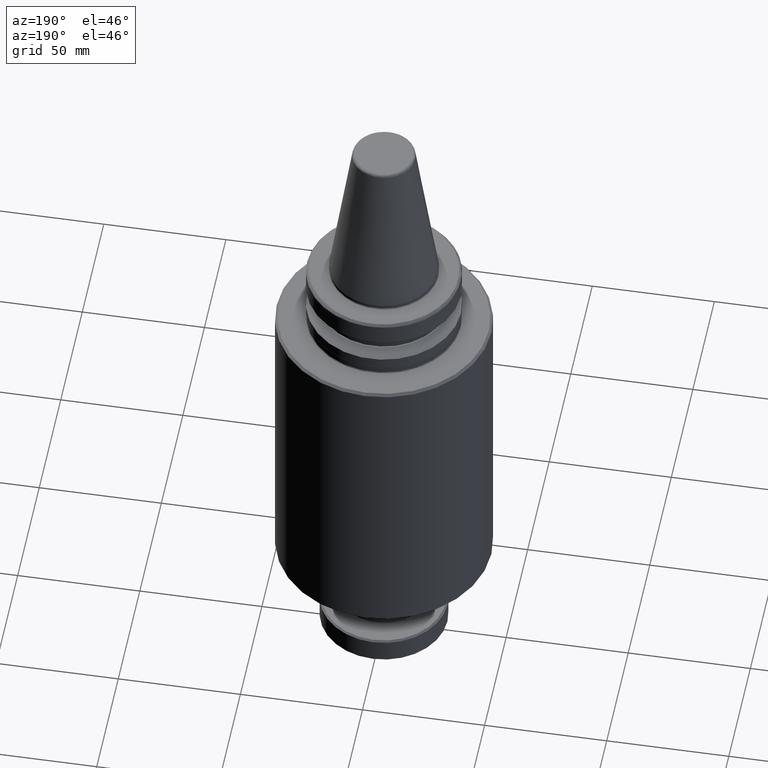
[diagram: clean part render]
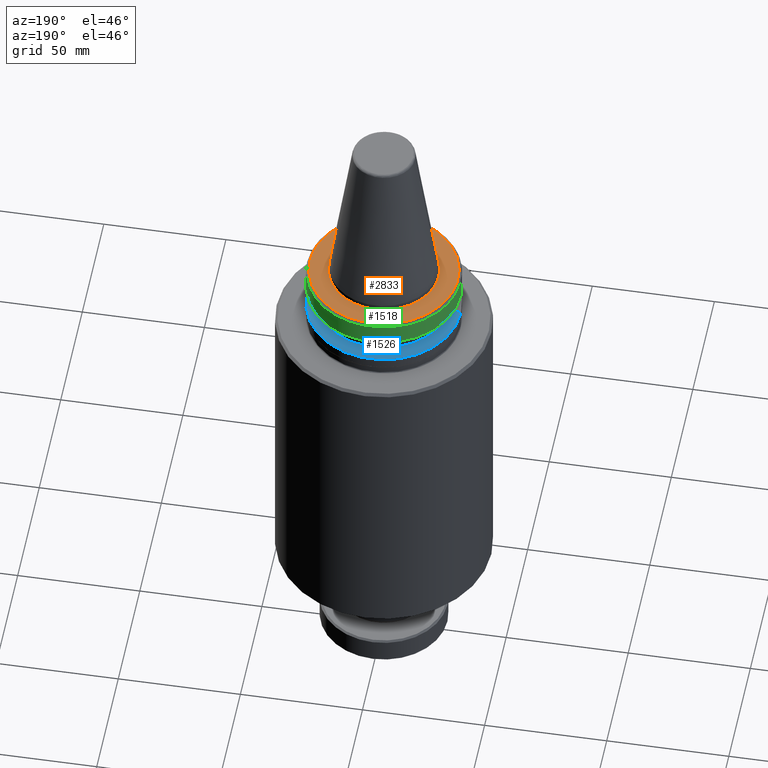
[diagram: same view with three faces highlighted in distinct colors, each labeled with its STEP entity id]
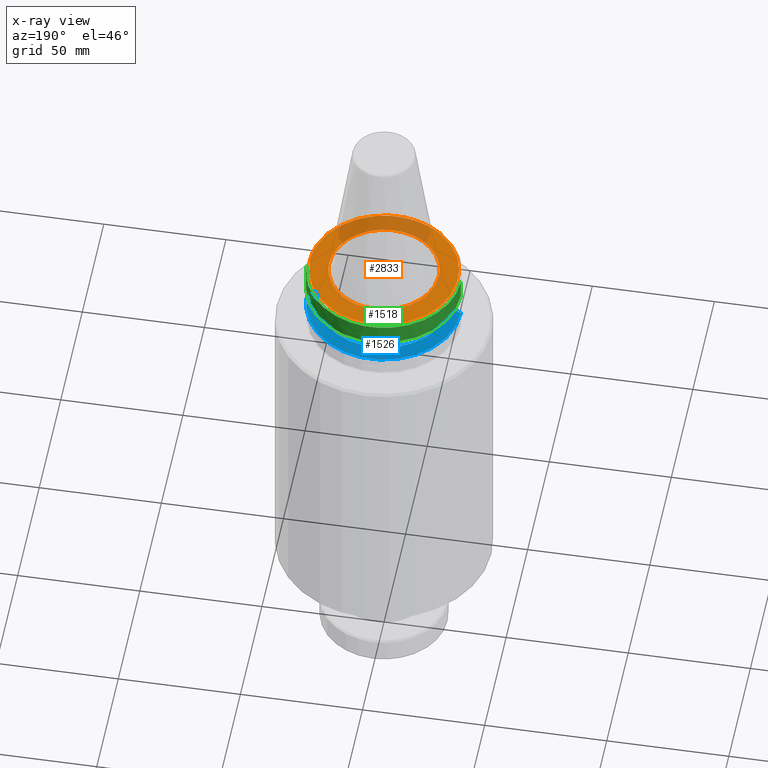
[diagram: x-ray of the same camera — body ghosted, the three highlighted faces saturated]
A machine part, auxiliary view with three faces highlighted in distinct colors.
The next image is the same camera in x-ray (body ghosted, the three faces saturated) — at least one of them is partly hidden behind the body in this view.
Their STEP definitions:

[orange] entity #2833 — the highlighted planar face has unit normal (0, 0, 1).
#10 = CARTESIAN_POINT ( 'NONE',  ( -21.19363721147259500, -21.70279524882472800, -2.000000000000003600 ) ) ;
#11 = CARTESIAN_POINT ( 'NONE',  ( -21.34265533147402400, -21.55628054257266200, -2.000000000000003100 ) ) ;
#13 = CARTESIAN_POINT ( 'NONE',  ( -21.56496645961039600, -21.33544397828752500, -2.000000000000002700 ) ) ;
#39 = CARTESIAN_POINT ( 'NONE',  ( -22.07518006220149700, -20.81270712727301800, -2.000000000000003100 ) ) ;
#41 = CARTESIAN_POINT ( 'NONE',  ( -23.06155781514204200, -19.73742728784717600, -2.000000000000003100 ) ) ;
#53 = CARTESIAN_POINT ( 'NONE',  ( -23.84865397096247700, -18.76466261851621900, -2.000000000000003600 ) ) ;
#62 = CARTESIAN_POINT ( 'NONE',  ( -25.34501896319383000, -16.75100496580439100, -2.000000000000004000 ) ) ;
#63 = FACE_OUTER_BOUND ( 'NONE', #878, .T. ) ;
#74 = CARTESIAN_POINT ( 'NONE',  ( -26.22615713672659200, -15.33487521295039700, -2.000000000000003600 ) ) ;
#80 = CARTESIAN_POINT ( 'NONE',  ( -27.03730075263817400, -13.75375675070631800, -2.000000000000003600 ) ) ;
#87 = CARTESIAN_POINT ( 'NONE',  ( -27.08328172268886600, -13.66298391430968100, -2.000000000000004000 ) ) ;
#105 = CARTESIAN_POINT ( 'NONE',  ( -27.17552217927437400, -13.47860611700149400, -2.000000000000002700 ) ) ;
#114 = CARTESIAN_POINT ( 'NONE',  ( -27.31242802033978000, -13.20144142849496500, -2.000000000000003600 ) ) ;
#129 = CARTESIAN_POINT ( 'NONE',  ( -27.62169107613543100, -12.55053787416999500, -2.000000000000002700 ) ) ;
#135 = CARTESIAN_POINT ( 'NONE',  ( -8.749999999999969800, -29.04493313364893200, -2.000000000000003100 ) ) ;
#139 = CARTESIAN_POINT ( 'NONE',  ( -28.19948156096570800, -11.23198697428110600, -2.000000000000003600 ) ) ;
#154 = CARTESIAN_POINT ( 'NONE',  ( -28.62489804494415000, -10.07309684653812300, -2.000000000000003600 ) ) ;
#157 = CARTESIAN_POINT ( 'NONE',  ( -28.89325826133658400, -9.238661841717211900, -2.000000000000003100 ) ) ;
#160 = CARTESIAN_POINT ( 'NONE',  ( -28.90810607769779800, -9.192089653147462500, -2.000000000000003600 ) ) ;
#166 = CARTESIAN_POINT ( 'NONE',  ( -28.93837664608739100, -9.096348332889613500, -2.000000000000002700 ) ) ;
#176 = CARTESIAN_POINT ( 'NONE',  ( -29.08597700981552200, -8.616766295322353400, -2.000000000000003100 ) ) ;
#181 = CARTESIAN_POINT ( 'NONE',  ( -29.28092431271120000, -7.942623470326331000, -2.000000000000003100 ) ) ;
#185 = CARTESIAN_POINT ( 'NONE',  ( -29.63014689650708900, -6.584849220675648600, -2.000000000000003600 ) ) ;
#188 = CARTESIAN_POINT ( 'NONE',  ( -29.85975707348273300, -5.404776550131664700, -2.000000000000003600 ) ) ;
#191 = CARTESIAN_POINT ( 'NONE',  ( -29.98947264532035100, -4.561210494486970500, -2.000000000000003100 ) ) ;
#197 = CARTESIAN_POINT ( 'NONE',  ( -29.99641556000171500, -4.515304581134667000, -2.000000000000003100 ) ) ;
#202 = CARTESIAN_POINT ( 'NONE',  ( -30.01064451337129300, -4.419751822976961000, -2.000000000000002700 ) ) ;
#205 = CARTESIAN_POINT ( 'NONE',  ( -30.03164365435872400, -4.276397373619983200, -2.000000000000003100 ) ) ;
#213 = CARTESIAN_POINT ( 'NONE',  ( -30.07823162652758200, -3.941726473610772400, -2.000000000000003600 ) ) ;
#219 = CARTESIAN_POINT ( 'NONE',  ( -30.16176747699117300, -3.271675934220625900, -2.000000000000003100 ) ) ;
#223 = CARTESIAN_POINT ( 'NONE',  ( -30.29027880242203400, -1.928739897953416300, -2.000000000000002700 ) ) ;
#228 = CARTESIAN_POINT ( 'NONE',  ( -30.33432786622617200, -0.7727919397468152600, -2.000000000000003600 ) ) ;
#230 = CARTESIAN_POINT ( 'NONE',  ( -30.33428799269995900, 1.545583879493640500, -2.000000000000003600 ) ) ;
#233 = CARTESIAN_POINT ( 'NONE',  ( -30.21679722845308200, 3.083211169452480900, -2.000000000000003600 ) ) ;
#237 = CARTESIAN_POINT ( 'NONE',  ( -29.97449997659994700, 4.658570178975695700, -2.000000000000004000 ) ) ;
#240 = CARTESIAN_POINT ( 'NONE',  ( -29.96645099098335100, 4.710087845352858500, -2.000000000000004000 ) ) ;
#244 = CARTESIAN_POINT ( 'NONE',  ( -29.95069697960449100, 4.809256991861052400, -2.000000000000003600 ) ) ;
#247 = CARTESIAN_POINT ( 'NONE',  ( -29.92670327773920400, 4.957924039950634100, -2.000000000000003100 ) ) ;
#251 = CARTESIAN_POINT ( 'NONE',  ( -29.86817917980781100, 5.304207117117356600, -2.000000000000003100 ) ) ;
#254 = CARTESIAN_POINT ( 'NONE',  ( -29.74097580962890300, 5.994346464614992000, -2.000000000000003600 ) ) ;
#258 = CARTESIAN_POINT ( 'NONE',  ( -29.44594837200642700, 7.364917932266970400, -2.000000000000003100 ) ) ;
#260 = CARTESIAN_POINT ( 'NONE',  ( 30.33431457505076500, 0.0000000000000000000, -2.000000000000004000 ) ) ;
#262 = CARTESIAN_POINT ( 'NONE',  ( -29.12343223016206700, 8.523052514808743000, -2.000000000000003600 ) ) ;
#267 = CARTESIAN_POINT ( 'NONE',  ( -28.86209987476046400, 9.335539612450308100, -2.000000000000003600 ) ) ;
#269 = CARTESIAN_POINT ( 'NONE',  ( -28.84576282849615600, 9.385905209361281400, -2.000000000000003100 ) ) ;
#272 = CARTESIAN_POINT ( 'NONE',  ( -28.81369036600395700, 9.483912763763319400, -2.000000000000002700 ) ) ;
#274 = CARTESIAN_POINT ( 'NONE',  ( -28.76521874753196100, 9.630772694172636200, -2.000000000000002700 ) ) ;
#285 = CARTESIAN_POINT ( 'NONE',  ( -28.64957783129484200, 9.972386056771533400, -2.000000000000002700 ) ) ;
#299 = CARTESIAN_POINT ( 'NONE',  ( -28.40813410627741200, 10.65137354854463000, -2.000000000000003600 ) ) ;
#301 = CARTESIAN_POINT ( 'NONE',  ( -27.88459908606970600, 11.99239159839202400, -2.000000000000003100 ) ) ;
#312 = CARTESIAN_POINT ( 'NONE',  ( -27.36617323416686200, 13.11276661192043700, -2.000000000000003600 ) ) ;
#334 = CARTESIAN_POINT ( 'NONE',  ( -26.94251307080588000, 13.93851335746777300, -2.000000000000003600 ) ) ;
#342 = VERTEX_POINT ( 'NONE', #672 ) ;
#349 = CARTESIAN_POINT ( 'NONE',  ( -26.89365406287836900, 14.03256751311638000, -2.000000000000003100 ) ) ;
#360 = CARTESIAN_POINT ( 'NONE',  ( -26.79635167324576600, 14.21751400322706400, -2.000000000000003600 ) ) ;
#371 = ORIENTED_EDGE ( 'NONE', *, *, #2183, .T. ) ;
#373 = CARTESIAN_POINT ( 'NONE',  ( -26.64902805857630600, 14.49407643446101400, -2.000000000000002700 ) ) ;
#388 = CARTESIAN_POINT ( 'NONE',  ( -26.29568274613712100, 15.13338764648238300, -2.000000000000003100 ) ) ;
#398 = CARTESIAN_POINT ( 'NONE',  ( -25.55063127508355300, 16.38800556042708200, -2.000000000000003100 ) ) ;
#411 = CARTESIAN_POINT ( 'NONE',  ( -24.84625427788013100, 17.42224175506874000, -2.000000000000004000 ) ) ;
#416 = CARTESIAN_POINT ( 'NONE',  ( -23.34981834935851500, 19.43584669269935000, -2.000000000000003600 ) ) ;
#421 = CARTESIAN_POINT ( 'NONE',  ( -22.24804844198898100, 20.68801721964906200, -2.000000000000003100 ) ) ;
#427 = CARTESIAN_POINT ( 'NONE',  ( -20.96811270195641800, 21.92075971457730400, -2.000000000000003100 ) ) ;
#433 = CIRCLE ( 'NONE', #2043, 30.33431457505076200 ) ;
#434 = CARTESIAN_POINT ( 'NONE',  ( -17.18029012768228400, 25.00021753326516500, -2.000000000000003600 ) ) ;
#447 = CARTESIAN_POINT ( 'NONE',  ( -15.54561570740041900, -26.06990072772504500, -2.000000000000003600 ) ) ;
#448 = CARTESIAN_POINT ( 'NONE',  ( -18.88876614855291400, 23.76095126636257500, -2.000000000000002700 ) ) ;
#452 = ORIENTED_EDGE ( 'NONE', *, *, #2210, .T. ) ;
#461 = CARTESIAN_POINT ( 'NONE',  ( -17.90184778714424100, 24.50256953808710800, -2.000000000000002700 ) ) ;
#464 = EDGE_CURVE ( 'NONE', #473, #1587, #2355, .T. ) ;
#467 = CARTESIAN_POINT ( 'NONE',  ( -20.74452781568345800, 22.13247374962266900, -2.000000000000003600 ) ) ;
#473 = VERTEX_POINT ( 'NONE', #3271 ) ;
#474 = CARTESIAN_POINT ( 'NONE',  ( -20.51863499986426500, 22.34350907754630800, -2.000000000000003600 ) ) ;
#483 = CARTESIAN_POINT ( 'NONE',  ( -12.88854277096256400, 27.46012467976101600, -2.000000000000002700 ) ) ;
#488 = CARTESIAN_POINT ( 'NONE',  ( -12.75735236366158200, 27.52157574578033900, -2.000000000000003100 ) ) ;
#494 = CARTESIAN_POINT ( 'NONE',  ( -12.45037334597324900, 27.66270663672325400, -2.000000000000003100 ) ) ;
#529 = CARTESIAN_POINT ( 'NONE',  ( 8.749999999999984000, -29.04493313364893200, -2.000000000000003100 ) ) ;
#565 = DIRECTION ( 'NONE',  ( -1.000000000000000000, 0.0000000000000000000, 0.0000000000000000000 ) ) ;
#669 = CARTESIAN_POINT ( 'NONE',  ( 22.40000000000000200, 0.0000000000000000000, -2.000000000000004000 ) ) ;
#670 = CARTESIAN_POINT ( 'NONE',  ( 22.39999999999999500, 1.370271814684916200, -2.000000000000003100 ) ) ;
#671 = CARTESIAN_POINT ( 'NONE',  ( 22.27534675084376300, 2.728929272695580300, -2.000000000000002700 ) ) ;
#672 = CARTESIAN_POINT ( 'NONE',  ( -22.40000000000000200, 2.743208830090071000E-015, -2.000000000000004000 ) ) ;
#676 = CARTESIAN_POINT ( 'NONE',  ( 22.02214483849513400, 4.097019922490423100, -2.000000000000003600 ) ) ;
#680 = CARTESIAN_POINT ( 'NONE',  ( 22.01774244189279300, 4.120618964790460300, -2.000000000000003600 ) ) ;
#682 = CARTESIAN_POINT ( 'NONE',  ( 22.00934566656746200, 4.165236834192418400, -2.000000000000004000 ) ) ;
#687 = CARTESIAN_POINT ( 'NONE',  ( 21.99665153889257100, 4.232134916938890400, -2.000000000000002200 ) ) ;
#690 = CARTESIAN_POINT ( 'NONE',  ( 21.96633915484310200, 4.388029393852119300, -2.000000000000004000 ) ) ;
#693 = CARTESIAN_POINT ( 'NONE',  ( 21.90294337551176800, 4.699014149697682700, -2.000000000000003600 ) ) ;
#700 = CARTESIAN_POINT ( 'NONE',  ( 21.76506777191970300, 5.317766869465260400, -2.000000000000003600 ) ) ;
#701 = CARTESIAN_POINT ( 'NONE',  ( 21.44498038501778600, 6.542405141306249800, -2.000000000000002700 ) ) ;
#702 = CARTESIAN_POINT ( 'NONE',  ( 21.09461488815716400, 7.570037086837112700, -2.000000000000003100 ) ) ;
#704 = CARTESIAN_POINT ( 'NONE',  ( 20.81054813477603500, 8.287526769645255700, -2.000000000000003600 ) ) ;
#707 = CARTESIAN_POINT ( 'NONE',  ( 20.79228629974398100, 8.333249188850146500, -2.000000000000003600 ) ) ;
#712 = CARTESIAN_POINT ( 'NONE',  ( 20.75691791007652400, 8.420970184742280700, -2.000000000000003600 ) ) ;
#714 = CARTESIAN_POINT ( 'NONE',  ( 20.70346857996236900, 8.552344979808417200, -2.000000000000003600 ) ) ;
#716 = CARTESIAN_POINT ( 'NONE',  ( 20.57597625707179000, 8.857439276891613000, -2.000000000000003100 ) ) ;
#720 = CARTESIAN_POINT ( 'NONE',  ( 20.30988273412712900, 9.461840305440235400, -2.000000000000003600 ) ) ;
#723 = CARTESIAN_POINT ( 'NONE',  ( 19.73326017958378000, 10.64749210006634100, -2.000000000000003600 ) ) ;
#724 = CARTESIAN_POINT ( 'NONE',  ( 19.16283711799689400, 11.62407890265251000, -2.000000000000003600 ) ) ;
#725 = CARTESIAN_POINT ( 'NONE',  ( 18.69693224296040800, 12.33667592247402900, -2.000000000000003600 ) ) ;
#727 = CARTESIAN_POINT ( 'NONE',  ( 18.64241366107939500, 12.41893087788616900, -2.000000000000003100 ) ) ;
#730 = CARTESIAN_POINT ( 'NONE',  ( 18.53468170720182700, 12.57918310161183100, -2.000000000000003600 ) ) ;
#737 = CARTESIAN_POINT ( 'NONE',  ( 18.37163761272627800, 12.81838125886699100, -2.000000000000002700 ) ) ;
#741 = CARTESIAN_POINT ( 'NONE',  ( 17.98107824666903900, 13.36824904412911300, -2.000000000000003100 ) ) ;
#746 = CARTESIAN_POINT ( 'NONE',  ( 17.15946693209742000, 14.43493962132031400, -2.000000000000003100 ) ) ;
#750 = CARTESIAN_POINT ( 'NONE',  ( 16.38581280682373600, 15.29259727034186000, -2.000000000000003600 ) ) ;
#752 = CARTESIAN_POINT ( 'NONE',  ( 14.74595008208855300, 16.93238115505229000, -2.000000000000004000 ) ) ;
#754 = CARTESIAN_POINT ( 'NONE',  ( -20.44923229447634600, -22.42054825975042900, -2.000000000000003600 ) ) ;
#758 = CARTESIAN_POINT ( 'NONE',  ( 13.55154730279607000, 17.90272195338969400, -2.000000000000004000 ) ) ;
#763 = CARTESIAN_POINT ( 'NONE',  ( 12.17662042414164200, 18.80157304491704900, -2.000000000000002700 ) ) ;
#767 = CARTESIAN_POINT ( 'NONE',  ( 12.09879233629953900, 18.85174391189426800, -2.000000000000003100 ) ) ;
#768 = CARTESIAN_POINT ( 'NONE',  ( 11.93926672244535900, 18.95319761216085700, -2.000000000000002700 ) ) ;
#773 = CARTESIAN_POINT ( 'NONE',  ( 11.69915882733755600, 19.10378740223082900, -2.000000000000003600 ) ) ;
#774 = CARTESIAN_POINT ( 'NONE',  ( 11.13317075180038000, 19.44402825675146900, -2.000000000000002700 ) ) ;
#776 = CARTESIAN_POINT ( 'NONE',  ( 9.978249319583429900, 20.07996867655561200, -2.000000000000003600 ) ) ;
#780 = CARTESIAN_POINT ( 'NONE',  ( 8.948981895724420700, 20.54870396912401300, -2.000000000000003100 ) ) ;
#791 = CARTESIAN_POINT ( 'NONE',  ( 8.201342719089797800, 20.84466756721559100, -2.000000000000003600 ) ) ;
#793 = CARTESIAN_POINT ( 'NONE',  ( 8.160831267533167100, 20.86055755905144700, -2.000000000000003600 ) ) ;
#799 = CARTESIAN_POINT ( 'NONE',  ( 8.076228125958939700, 20.89346074650345700, -2.000000000000002700 ) ) ;
#803 = CARTESIAN_POINT ( 'NONE',  ( 7.949210498676145600, 20.94241909988045300, -2.000000000000003100 ) ) ;
#806 = CARTESIAN_POINT ( 'NONE',  ( 7.652045630566141700, 21.05388026315312200, -2.000000000000003600 ) ) ;
#808 = CARTESIAN_POINT ( 'NONE',  ( 7.054554276545589500, 21.26570261127030300, -2.000000000000003600 ) ) ;
#812 = CARTESIAN_POINT ( 'NONE',  ( -20.89446154132377800, 21.99096985608650500, -2.000000000000003100 ) ) ;
#814 = CARTESIAN_POINT ( 'NONE',  ( 5.846925097302207800, 21.64494739379230400, -2.000000000000003600 ) ) ;
#816 = CARTESIAN_POINT ( 'NONE',  ( 4.790134707318284900, 21.89390021244705800, -2.000000000000003100 ) ) ;
#817 = CARTESIAN_POINT ( 'NONE',  ( 4.053654801116849200, 22.03016962878389500, -2.000000000000002700 ) ) ;
#818 = FACE_BOUND ( 'NONE', #2851, .T. ) ;
#820 = CARTESIAN_POINT ( 'NONE',  ( 4.033857983394772100, 22.03380165318769100, -2.000000000000003600 ) ) ;
#822 = CARTESIAN_POINT ( 'NONE',  ( 3.991735474924614100, 22.04147173132552600, -2.000000000000004000 ) ) ;
#831 = CARTESIAN_POINT ( 'NONE',  ( 3.928543594386488400, 22.05288552601367500, -2.000000000000003100 ) ) ;
#833 = CARTESIAN_POINT ( 'NONE',  ( 3.781039048300651300, 22.07887845598923700, -2.000000000000003600 ) ) ;
#837 = CARTESIAN_POINT ( 'NONE',  ( 3.485802656808132400, 22.12830728541988300, -2.000000000000003100 ) ) ;
#838 = CARTESIAN_POINT ( 'NONE',  ( 2.894420676539724500, 22.21693682219912300, -2.000000000000003100 ) ) ;
#844 = CARTESIAN_POINT ( 'NONE',  ( 1.708019926869389400, 22.35328340742955800, -2.000000000000003600 ) ) ;
#847 = CARTESIAN_POINT ( 'NONE',  ( 0.6848705029230751600, 22.40001621477894400, -2.000000000000003600 ) ) ;
#851 = CARTESIAN_POINT ( 'NONE',  ( -1.369741005846161000, 22.39996757044212600, -2.000000000000003100 ) ) ;
#853 = CARTESIAN_POINT ( 'NONE',  ( -2.729104585155485800, 22.27531430456798100, -2.000000000000003600 ) ) ;
#857 = DIRECTION ( 'NONE',  ( -0.0000000000000000000, -0.0000000000000000000, -1.000000000000000000 ) ) ;
#858 = CARTESIAN_POINT ( 'NONE',  ( -4.097017183233235800, 22.02214534546820000, -2.000000000000003100 ) ) ;
#862 = CARTESIAN_POINT ( 'NONE',  ( -4.120618964790725000, 22.01774244189266800, -2.000000000000003100 ) ) ;
#863 = CARTESIAN_POINT ( 'NONE',  ( -4.165236834192944200, 22.00934566656719600, -2.000000000000002700 ) ) ;
#865 = CARTESIAN_POINT ( 'NONE',  ( -4.232134916939803500, 21.99665153889210600, -2.000000000000002700 ) ) ;
#870 = CARTESIAN_POINT ( 'NONE',  ( -4.388029393853883200, 21.96633915484218500, -2.000000000000003100 ) ) ;
#878 = EDGE_LOOP ( 'NONE', ( #371, #3139, #1638, #3151, #3143 ) ) ;
#879 = CARTESIAN_POINT ( 'NONE',  ( -4.699014149700976100, 21.90294337551010500, -2.000000000000003100 ) ) ;
#882 = CARTESIAN_POINT ( 'NONE',  ( -5.317766869470913700, 21.76506777191682200, -2.000000000000003100 ) ) ;
#888 = CARTESIAN_POINT ( 'NONE',  ( -6.542405141313800200, 21.44498038501395200, -2.000000000000002700 ) ) ;
#893 = CARTESIAN_POINT ( 'NONE',  ( -7.570037086841433700, 21.09461488815497900, -2.000000000000004000 ) ) ;
#894 = CARTESIAN_POINT ( 'NONE',  ( -10.58419335490068600, 28.44635394885360600, -2.000000000000003600 ) ) ;
#896 = CARTESIAN_POINT ( 'NONE',  ( -8.287526769644985700, 20.81054813477617000, -2.000000000000004000 ) ) ;
#898 = DIRECTION ( 'NONE',  ( -1.000000000000000000, 0.0000000000000000000, 0.0000000000000000000 ) ) ;
#899 = CARTESIAN_POINT ( 'NONE',  ( -8.333249188849523000, 20.79228629974428300, -2.000000000000004000 ) ) ;
#902 = CARTESIAN_POINT ( 'NONE',  ( -8.420970184741060300, 20.75691791007713500, -2.000000000000004000 ) ) ;
#903 = CARTESIAN_POINT ( 'NONE',  ( -8.552344979806328200, 20.70346857996340300, -2.000000000000003600 ) ) ;
#905 = CARTESIAN_POINT ( 'NONE',  ( -19.98460617144179700, 22.82738125603728100, -2.000000000000003600 ) ) ;
#906 = CARTESIAN_POINT ( 'NONE',  ( -8.857439276887731700, 20.57597625707371200, -2.000000000000003100 ) ) ;
#907 = CARTESIAN_POINT ( 'NONE',  ( -9.461840305433570500, 20.30988273413042900, -2.000000000000003100 ) ) ;
#913 = CARTESIAN_POINT ( 'NONE',  ( -10.64749210005746200, 19.73326017958817500, -2.000000000000002700 ) ) ;
#914 = CARTESIAN_POINT ( 'NONE',  ( -11.62407890264743500, 19.16283711799939800, -2.000000000000003600 ) ) ;
#919 = CARTESIAN_POINT ( 'NONE',  ( -12.33667592247465800, 18.69693224296009900, -2.000000000000003100 ) ) ;
#924 = CARTESIAN_POINT ( 'NONE',  ( -12.41893087788559300, 18.64241366107998100, -2.000000000000003100 ) ) ;
#930 = CARTESIAN_POINT ( 'NONE',  ( -12.57918310161072700, 18.53468170720292500, -2.000000000000002700 ) ) ;
#931 = CARTESIAN_POINT ( 'NONE',  ( -12.81838125886517000, 18.37163761272810800, -2.000000000000003100 ) ) ;
#936 = CARTESIAN_POINT ( 'NONE',  ( -13.36824904412599800, 17.98107824667216500, -2.000000000000003600 ) ) ;
#939 = CARTESIAN_POINT ( 'NONE',  ( -14.43493962131616300, 17.15946693210156900, -2.000000000000003100 ) ) ;
#940 = EDGE_CURVE ( 'NONE', #2997, #1587, #433, .T. ) ;
#944 = CARTESIAN_POINT ( 'NONE',  ( -15.29259727033948500, 16.38581280682610600, -2.000000000000003600 ) ) ;
#945 = CARTESIAN_POINT ( 'NONE',  ( -16.93238115505703000, 14.74595008208380700, -2.000000000000003600 ) ) ;
#949 = CARTESIAN_POINT ( 'NONE',  ( -17.90272195339947800, 13.55154730278627200, -2.000000000000004000 ) ) ;
#952 = CARTESIAN_POINT ( 'NONE',  ( -18.80157304491644200, 12.17662042414224800, -2.000000000000003600 ) ) ;
#955 = CARTESIAN_POINT ( 'NONE',  ( -18.85174391189489300, 12.09879233629797000, -2.000000000000003100 ) ) ;
#956 = CARTESIAN_POINT ( 'NONE',  ( -18.95319761216203200, 11.93926672244238000, -2.000000000000003600 ) ) ;
#957 = CARTESIAN_POINT ( 'NONE',  ( -19.10378740223278600, 11.69915882733261900, -2.000000000000003100 ) ) ;
#959 = CARTESIAN_POINT ( 'NONE',  ( -19.44402825675482700, 11.13317075179192800, -2.000000000000003600 ) ) ;
#961 = CARTESIAN_POINT ( 'NONE',  ( -20.07996867656007100, 9.978249319572150000, -2.000000000000003100 ) ) ;
#963 = EDGE_CURVE ( 'NONE', #473, #2014, #2911, .T. ) ;
#964 = CARTESIAN_POINT ( 'NONE',  ( -20.54870396912657100, 8.948981895717979600, -2.000000000000003600 ) ) ;
#968 = CARTESIAN_POINT ( 'NONE',  ( -20.84466756721542100, 8.201342719090201100, -2.000000000000002700 ) ) ;
#971 = CARTESIAN_POINT ( 'NONE',  ( -20.86055755905033800, 8.160831267535956000, -2.000000000000003600 ) ) ;
#977 = CARTESIAN_POINT ( 'NONE',  ( -8.749999999999969800, -29.04493313364893200, -2.000000000000003100 ) ) ;
#981 = CARTESIAN_POINT ( 'NONE',  ( -20.89346074650129700, 8.076228125964370000, -2.000000000000003100 ) ) ;
#982 = CARTESIAN_POINT ( 'NONE',  ( -20.94241909987678300, 7.949210498685419100, -2.000000000000003600 ) ) ;
#984 = CARTESIAN_POINT ( 'NONE',  ( -21.05388026314624400, 7.652045630583450600, -2.000000000000003100 ) ) ;
#986 = CARTESIAN_POINT ( 'NONE',  ( -21.26570261125855800, 7.054554276575252900, -2.000000000000003100 ) ) ;
#988 = CARTESIAN_POINT ( 'NONE',  ( -21.64494739377664300, 5.846925097341760100, -2.000000000000003600 ) ) ;
#991 = CARTESIAN_POINT ( 'NONE',  ( -21.89390021243810800, 4.790134707340890900, -2.000000000000003100 ) ) ;
#998 = CARTESIAN_POINT ( 'NONE',  ( -22.03016962878418300, 4.053654801116148400, -2.000000000000003600 ) ) ;
#1000 = CARTESIAN_POINT ( 'NONE',  ( -22.03380064768137800, 4.033863417742547400, -2.000000000000004000 ) ) ;
#1004 = CARTESIAN_POINT ( 'NONE',  ( -22.04146974406501200, 3.991746215249739800, -2.000000000000004000 ) ) ;
#1005 = CARTESIAN_POINT ( 'NONE',  ( -22.05288208987399300, 3.928562165307222000, -2.000000000000003100 ) ) ;
#1007 = CARTESIAN_POINT ( 'NONE',  ( -22.07887180539631400, 3.781074992018196300, -2.000000000000003100 ) ) ;
#1008 = CARTESIAN_POINT ( 'NONE',  ( -22.12829487097975100, 3.485869751747544800, -2.000000000000003600 ) ) ;
#1016 = CARTESIAN_POINT ( 'NONE',  ( -22.21691554030177700, 2.894535696435848400, -2.000000000000003600 ) ) ;
#1017 = CARTESIAN_POINT ( 'NONE',  ( -22.35325503156640500, 1.708173286730883000, -2.000000000000001800 ) ) ;
#1030 = CARTESIAN_POINT ( 'NONE',  ( -22.40000000000000200, 2.743208830090071000E-015, -2.000000000000004000 ) ) ;
#1034 = CARTESIAN_POINT ( 'NONE',  ( -10.23037642495336300, -28.59895883380330500, -2.000000000000003100 ) ) ;
#1065 = CARTESIAN_POINT ( 'NONE',  ( -13.01786260870684100, 27.39905771774445500, -2.000000000000003100 ) ) ;
#1071 = CARTESIAN_POINT ( 'NONE',  ( -22.40000000000000200, 0.6849581371296453700, -2.000000000000003100 ) ) ;
#1096 = DIRECTION ( 'NONE',  ( 1.000000000000000000, 0.0000000000000000000, -0.0000000000000000000 ) ) ;
#1097 = DIRECTION ( 'NONE',  ( 0.0000000000000000000, 0.0000000000000000000, 1.000000000000000000 ) ) ;
#1102 = PLANE ( 'NONE',  #2750 ) ;
#1128 = CARTESIAN_POINT ( 'NONE',  ( 0.0000000000000000000, 2.186355808769675400E-016, -2.000000000000003100 ) ) ;
#1255 = VERTEX_POINT ( 'NONE', #3540 ) ;
#1288 = CARTESIAN_POINT ( 'NONE',  ( -8.749999999999973400, 29.04493313364893200, -2.000000000000003100 ) ) ;
#1385 = CARTESIAN_POINT ( 'NONE',  ( -13.24418078834431400, -27.29038067934384100, -2.000000000000003600 ) ) ;
#1539 = CARTESIAN_POINT ( 'NONE',  ( -17.26406233503884000, -24.94243894907206600, -2.000000000000002700 ) ) ;
#1587 = VERTEX_POINT ( 'NONE', #135 ) ;
#1638 = ORIENTED_EDGE ( 'NONE', *, *, #464, .T. ) ;
#1651 = CARTESIAN_POINT ( 'NONE',  ( -21.11767438274652500, -21.77670759897218700, -2.000000000000003600 ) ) ;
#1661 = CARTESIAN_POINT ( 'NONE',  ( -13.37960760240056000, -27.22452350851242300, -2.000000000000003600 ) ) ;
#1745 = CARTESIAN_POINT ( 'NONE',  ( -18.39301839334420000, -24.12821411238891400, -2.000000000000003600 ) ) ;
#1753 = B_SPLINE_CURVE_WITH_KNOTS ( 'NONE', 3,
 ( #1030, #1071, #1017, #1016, #1008, #1007, #1005, #1004, #1000, #998, #991, #988, #986, #984, #982, #981, #971, #968, #964, #961, #959, #957, #956, #955, #952, #949, #945, #944, #939, #936, #931, #930, #924, #919, #914, #913, #907, #906, #903, #902, #899, #896, #893, #888, #882, #879, #870, #865, #863, #862, #858, #853, #851, #847, #844, #838, #837, #833, #831, #822, #820, #817, #816, #814, #808, #806, #803, #799, #793, #791, #780, #776, #774, #773, #768, #767, #763, #758, #752, #750, #746, #741, #737, #730, #727, #725, #724, #723, #720, #716, #714, #712, #707, #704, #702, #701, #700, #693, #690, #687, #682, #680, #676, #671, #670, #669 ),
 .UNSPECIFIED., .F., .F.,
 ( 4, 1, 1, 1, 1, 1, 2, 2, 1, 1, 1, 1, 2, 2, 1, 1, 1, 2, 2, 2, 1, 1, 1, 2, 2, 1, 1, 1, 1, 2, 2, 1, 1, 1, 1, 1, 2, 2, 2, 1, 1, 1, 1, 1, 2, 2, 1, 1, 1, 1, 2, 2, 1, 1, 1, 2, 2, 2, 1, 1, 1, 2, 2, 1, 1, 1, 1, 2, 2, 1, 1, 1, 1, 1, 2, 2, 4 ),
 ( 0.0000000000000000000, 0.03124999999999852200, 0.04687499999999779300, 0.05468749999999742600, 0.05859374999999723100, 0.06054687499999714100, 0.06152343749999712000, 0.06249999999999710000, 0.09374999999999587800, 0.1093749999999952400, 0.1171874999999949500, 0.1210937499999948000, 0.1230468749999948000, 0.1249999999999947800, 0.1562499999999948400, 0.1718749999999948100, 0.1796874999999948100, 0.1835937499999948100, 0.1874999999999948100, 0.2499999999999948400, 0.2812499999999947800, 0.2968749999999948400, 0.3046874999999948900, 0.3085937499999949500, 0.3124999999999950000, 0.3437499999999955000, 0.3593749999999958400, 0.3671874999999960600, 0.3710937499999961100, 0.3730468749999961700, 0.3749999999999962300, 0.4062499999999981100, 0.4218749999999990000, 0.4296874999999993900, 0.4335937499999996100, 0.4355468749999996700, 0.4365234374999996700, 0.4374999999999996700, 0.5000000000000003300, 0.5312500000000006700, 0.5468750000000007800, 0.5546875000000008900, 0.5585937500000008900, 0.5605468750000008900, 0.5615234375000008900, 0.5625000000000007800, 0.5937500000000008900, 0.6093750000000008900, 0.6171875000000010000, 0.6210937500000008900, 0.6230468750000008900, 0.6250000000000007800, 0.6562500000000002200, 0.6718750000000001100, 0.6796875000000000000, 0.6835937500000000000, 0.6874999999999998900, 0.7499999999999996700, 0.7812499999999995600, 0.7968749999999995600, 0.8046874999999994400, 0.8085937499999995600, 0.8124999999999995600, 0.8437499999999995600, 0.8593749999999994400, 0.8671874999999994400, 0.8710937499999994400, 0.8730468749999994400, 0.8749999999999994400, 0.9062499999999996700, 0.9218749999999996700, 0.9296874999999997800, 0.9335937499999997800, 0.9355468749999997800, 0.9365234374999997800, 0.9374999999999997800, 1.000000000000000000 ),
 .UNSPECIFIED. ) ;
#1767 = CARTESIAN_POINT ( 'NONE',  ( 30.33431457505076500, 0.0000000000000000000, -2.000000000000004000 ) ) ;
#1768 = CARTESIAN_POINT ( 'NONE',  ( 30.33431457505077900, -1.546094251913540800, -2.000000000000004000 ) ) ;
#1770 = CARTESIAN_POINT ( 'NONE',  ( 30.21682382255558300, -3.083038260970839300, -2.000000000000003600 ) ) ;
#1772 = CARTESIAN_POINT ( 'NONE',  ( 29.97449914553424600, -4.658575582365744900, -2.000000000000003600 ) ) ;
#1774 = CARTESIAN_POINT ( 'NONE',  ( 29.96645099098304900, -4.710087845352450000, -2.000000000000003600 ) ) ;
#1775 = CARTESIAN_POINT ( 'NONE',  ( 29.95069697960389700, -4.809256991860247700, -2.000000000000003600 ) ) ;
#1776 = CARTESIAN_POINT ( 'NONE',  ( 29.92670327773818400, -4.957924039949261900, -2.000000000000002700 ) ) ;
#1781 = CARTESIAN_POINT ( 'NONE',  ( 29.86817917980592800, -5.304207117114797800, -2.000000000000003100 ) ) ;
#1785 = CARTESIAN_POINT ( 'NONE',  ( 29.74097580962566300, -5.994346464610611500, -2.000000000000003600 ) ) ;
#1786 = CARTESIAN_POINT ( 'NONE',  ( 29.44594837200211000, -7.364917932261130700, -2.000000000000003600 ) ) ;
#1787 = CARTESIAN_POINT ( 'NONE',  ( 29.12343223015959700, -8.523052514805392800, -2.000000000000003600 ) ) ;
#1788 = CARTESIAN_POINT ( 'NONE',  ( 28.86209987476061300, -9.335539612450498100, -2.000000000000003100 ) ) ;
#1790 = CARTESIAN_POINT ( 'NONE',  ( 28.84576282849679200, -9.385905209360668500, -2.000000000000004000 ) ) ;
#1791 = CARTESIAN_POINT ( 'NONE',  ( 28.81369036600519700, -9.483912763762129200, -2.000000000000003100 ) ) ;
#1792 = CARTESIAN_POINT ( 'NONE',  ( 28.76521874753410700, -9.630772694170616400, -2.000000000000003100 ) ) ;
#1798 = CARTESIAN_POINT ( 'NONE',  ( 28.64957783129882800, -9.972386056767764000, -2.000000000000003100 ) ) ;
#1800 = CARTESIAN_POINT ( 'NONE',  ( 28.40813410628424800, -10.65137354853818500, -2.000000000000003100 ) ) ;
#1804 = CARTESIAN_POINT ( 'NONE',  ( 27.88459908607884000, -11.99239159838343100, -2.000000000000003100 ) ) ;
#1812 = CARTESIAN_POINT ( 'NONE',  ( 27.36617323417207700, -13.11276661191551300, -2.000000000000003100 ) ) ;
#1813 = CARTESIAN_POINT ( 'NONE',  ( 26.94251307080524100, -13.93851335746836500, -2.000000000000003600 ) ) ;
#1815 = CARTESIAN_POINT ( 'NONE',  ( 26.89365406287586100, -14.03256751311997200, -2.000000000000003100 ) ) ;
#1817 = CARTESIAN_POINT ( 'NONE',  ( 26.79635167324098800, -14.21751400323392500, -2.000000000000002700 ) ) ;
#1820 = CARTESIAN_POINT ( 'NONE',  ( 26.64902805856836900, -14.49407643447241700, -2.000000000000003100 ) ) ;
#1826 = CARTESIAN_POINT ( 'NONE',  ( 26.29568274612350700, -15.13338764650194600, -2.000000000000003100 ) ) ;
#1829 = CARTESIAN_POINT ( 'NONE',  ( 25.55063127506538500, -16.38800556045318400, -2.000000000000003100 ) ) ;
#1832 = CARTESIAN_POINT ( 'NONE',  ( 24.84625427786975700, -17.42224175508363600, -2.000000000000003100 ) ) ;
#1836 = CARTESIAN_POINT ( 'NONE',  ( 23.34981834937931600, -19.43584669266948600, -2.000000000000003600 ) ) ;
#1839 = CARTESIAN_POINT ( 'NONE',  ( 22.24804844199840300, -20.68801721963453100, -2.000000000000004000 ) ) ;
#1841 = CARTESIAN_POINT ( 'NONE',  ( 20.96811270195585700, -21.92075971457819300, -2.000000000000003600 ) ) ;
#1842 = CARTESIAN_POINT ( 'NONE',  ( -12.97592036941851400, 27.41894254719873600, -2.000000000000003100 ) ) ;
#1844 = CARTESIAN_POINT ( 'NONE',  ( 20.89446154131963600, -21.99096985609116600, -2.000000000000003600 ) ) ;
#1849 = CARTESIAN_POINT ( 'NONE',  ( 20.74452781567553200, -22.13247374963154400, -2.000000000000003600 ) ) ;
#1854 = CARTESIAN_POINT ( 'NONE',  ( 20.51863499985107700, -22.34350907756105200, -2.000000000000003100 ) ) ;
#1856 = CARTESIAN_POINT ( 'NONE',  ( 19.98460617141919500, -22.82738125606259100, -2.000000000000003100 ) ) ;
#1858 = CARTESIAN_POINT ( 'NONE',  ( 18.88876614852278400, -23.76095126639632600, -2.000000000000003100 ) ) ;
#1862 = CARTESIAN_POINT ( 'NONE',  ( 17.90184778712703900, -24.50256953810640300, -2.000000000000003600 ) ) ;
#1867 = CARTESIAN_POINT ( 'NONE',  ( 17.18029012768337800, -25.00021753326396000, -2.000000000000003100 ) ) ;
#1869 = CARTESIAN_POINT ( 'NONE',  ( 17.13998040825293500, -25.02786808331120800, -2.000000000000002700 ) ) ;
#1873 = CARTESIAN_POINT ( 'NONE',  ( 17.05704025263258200, -25.08446877500373500, -2.000000000000003100 ) ) ;
#1878 = CARTESIAN_POINT ( 'NONE',  ( 16.93244415121469600, -25.16904654270791800, -2.000000000000003100 ) ) ;
#1882 = CARTESIAN_POINT ( 'NONE',  ( 16.64041883866155700, -25.36413177850883500, -2.000000000000003600 ) ) ;
#1884 = CARTESIAN_POINT ( 'NONE',  ( 16.05116390990960800, -25.74525069474194800, -2.000000000000003100 ) ) ;
#1886 = CARTESIAN_POINT ( 'NONE',  ( 14.85183683782306500, -26.47128230573339300, -2.000000000000003600 ) ) ;
#1887 = CARTESIAN_POINT ( 'NONE',  ( 13.78815555103575900, -27.03152730691208200, -2.000000000000003100 ) ) ;
#1891 = CARTESIAN_POINT ( 'NONE',  ( 13.01786260870878700, -27.39905771774356700, -2.000000000000002700 ) ) ;
#1892 = CARTESIAN_POINT ( 'NONE',  ( 12.97592036941898500, -27.41894254719858300, -2.000000000000003600 ) ) ;
#1893 = CARTESIAN_POINT ( 'NONE',  ( 12.88854277096345200, -27.46012467976074900, -2.000000000000003100 ) ) ;
#1901 = CARTESIAN_POINT ( 'NONE',  ( 0.0000000000000000000, 0.0000000000000000000, -2.000000000000001800 ) ) ;
#1902 = CARTESIAN_POINT ( 'NONE',  ( 12.75735236366309200, -27.52157574577988100, -2.000000000000003600 ) ) ;
#1906 = CARTESIAN_POINT ( 'NONE',  ( 12.45037334597603300, -27.66270663672241900, -2.000000000000003100 ) ) ;
#1907 = CARTESIAN_POINT ( 'NONE',  ( 11.83294304132383700, -27.93594869953234300, -2.000000000000003100 ) ) ;
#1910 = CARTESIAN_POINT ( 'NONE',  ( 10.58419335490702000, -28.44635394885169800, -2.000000000000003100 ) ) ;
#1917 = CARTESIAN_POINT ( 'NONE',  ( 8.749999999999984000, -29.04493313364893200, -2.000000000000003100 ) ) ;
#1933 = B_SPLINE_CURVE_WITH_KNOTS ( 'NONE', 3,
 ( #1917, #1943, #1910, #1907, #1906, #1902, #1893, #1892, #1891, #1887, #1886, #1884, #1882, #1878, #1873, #1869, #1867, #1862, #1858, #1856, #1854, #1849, #1844, #1841, #1839, #1836, #1832, #1829, #1826, #1820, #1817, #1815, #1813, #1812, #1804, #1800, #1798, #1792, #1791, #1790, #1788, #1787, #1786, #1785, #1781, #1776, #1775, #1774, #1772, #1770, #1768, #1767 ),
 .UNSPECIFIED., .F., .F.,
 ( 4, 1, 1, 1, 1, 2, 2, 1, 1, 1, 1, 2, 2, 1, 1, 1, 2, 2, 2, 1, 1, 1, 2, 2, 1, 1, 1, 1, 2, 2, 1, 1, 1, 1, 2, 2, 4 ),
 ( 0.0000000000000000000, 0.06249999999999802900, 0.09374999999999697500, 0.1093749999999964500, 0.1171874999999961800, 0.1210937499999961100, 0.1249999999999960400, 0.1874999999999957500, 0.2187499999999955900, 0.2343749999999956400, 0.2421874999999958400, 0.2460937499999958900, 0.2499999999999959500, 0.3124999999999971100, 0.3437499999999979500, 0.3593749999999983300, 0.3671874999999985000, 0.3749999999999987200, 0.5000000000000022200, 0.5625000000000041100, 0.5937500000000048800, 0.6093750000000053300, 0.6171875000000054400, 0.6250000000000054400, 0.6875000000000069900, 0.7187500000000077700, 0.7343750000000079900, 0.7421875000000082200, 0.7460937500000082200, 0.7500000000000082200, 0.8125000000000061100, 0.8437500000000051100, 0.8593750000000046600, 0.8671875000000044400, 0.8710937500000043300, 0.8750000000000041100, 1.000000000000000000 ),
 .UNSPECIFIED. ) ;
#1943 = CARTESIAN_POINT ( 'NONE',  ( 9.490026634357045400, -28.82199466032456300, -2.000000000000002700 ) ) ;
#1950 = CARTESIAN_POINT ( 'NONE',  ( -11.66810107770588400, -28.04312721652442500, -2.000000000000003100 ) ) ;
#2014 = VERTEX_POINT ( 'NONE', #2899 ) ;
#2043 = AXIS2_PLACEMENT_3D ( 'NONE', #1901, #3541, #898 ) ;
#2155 = CARTESIAN_POINT ( 'NONE',  ( -22.40000000000000200, 2.743208830090071000E-015, -2.000000000000004000 ) ) ;
#2158 = AXIS2_PLACEMENT_3D ( 'NONE', #2796, #857, #565 ) ;
#2161 = CARTESIAN_POINT ( 'NONE',  ( -22.40000000000000900, -1.370271814696847100, -2.000000000000003600 ) ) ;
#2162 = CARTESIAN_POINT ( 'NONE',  ( -22.27534675084375900, -2.728929272707512100, -2.000000000000003100 ) ) ;
#2165 = CARTESIAN_POINT ( 'NONE',  ( -22.02214483849512700, -4.097019922490240200, -2.000000000000003100 ) ) ;
#2169 = CARTESIAN_POINT ( 'NONE',  ( -22.01774244189266100, -4.120618964790804900, -2.000000000000002700 ) ) ;
#2173 = CARTESIAN_POINT ( 'NONE',  ( -22.00934566656719600, -4.165236834193101400, -2.000000000000003600 ) ) ;
#2176 = CARTESIAN_POINT ( 'NONE',  ( -21.99665153889210600, -4.232134916940072600, -2.000000000000003100 ) ) ;
#2177 = CARTESIAN_POINT ( 'NONE',  ( -21.96633915484217800, -4.388029393854397500, -2.000000000000002700 ) ) ;
#2180 = CARTESIAN_POINT ( 'NONE',  ( -21.90294337551009100, -4.699014149701936200, -2.000000000000003100 ) ) ;
#2183 = EDGE_CURVE ( 'NONE', #3188, #2014, #2915, .T. ) ;
#2184 = CARTESIAN_POINT ( 'NONE',  ( -21.76506777191681500, -5.317766869472553300, -2.000000000000003100 ) ) ;
#2187 = CARTESIAN_POINT ( 'NONE',  ( -21.44498038501394900, -6.542405141315978100, -2.000000000000003600 ) ) ;
#2190 = CARTESIAN_POINT ( 'NONE',  ( -21.09461488815495800, -7.570037086842672700, -2.000000000000002700 ) ) ;
#2194 = CARTESIAN_POINT ( 'NONE',  ( -20.81054813477616200, -8.287526769644909300, -2.000000000000003100 ) ) ;
#2198 = CARTESIAN_POINT ( 'NONE',  ( -20.79228629974413100, -8.333249188849761100, -2.000000000000003600 ) ) ;
#2201 = CARTESIAN_POINT ( 'NONE',  ( -20.75691791007682600, -8.420970184741529300, -2.000000000000003600 ) ) ;
#2204 = CARTESIAN_POINT ( 'NONE',  ( -20.70346857996287000, -8.552344979807132900, -2.000000000000003600 ) ) ;
#2207 = CARTESIAN_POINT ( 'NONE',  ( -20.57597625707273900, -8.857439276889227400, -2.000000000000003100 ) ) ;
#2209 = CARTESIAN_POINT ( 'NONE',  ( -20.30988273412874900, -9.461840305436135500, -2.000000000000003100 ) ) ;
#2210 = EDGE_CURVE ( 'NONE', #1255, #342, #3472, .T. ) ;
#2218 = CARTESIAN_POINT ( 'NONE',  ( -19.73326017958595500, -10.64749210006087500, -2.000000000000003600 ) ) ;
#2222 = CARTESIAN_POINT ( 'NONE',  ( -19.16283711799812700, -11.62407890264938200, -2.000000000000003100 ) ) ;
#2223 = CARTESIAN_POINT ( 'NONE',  ( -18.69693224296026200, -12.33667592247441500, -2.000000000000004000 ) ) ;
#2226 = CARTESIAN_POINT ( 'NONE',  ( -18.64241366107998100, -12.41893087788559300, -2.000000000000003100 ) ) ;
#2230 = CARTESIAN_POINT ( 'NONE',  ( -18.53468170720293200, -12.57918310161073300, -2.000000000000003600 ) ) ;
#2235 = CARTESIAN_POINT ( 'NONE',  ( -19.52602069266462700, -23.24011270088770700, -2.000000000000003100 ) ) ;
#2240 = CARTESIAN_POINT ( 'NONE',  ( -18.37163761272810400, -12.81838125886517500, -2.000000000000003600 ) ) ;
#2245 = CARTESIAN_POINT ( 'NONE',  ( -17.98107824667216200, -13.36824904412599200, -2.000000000000002700 ) ) ;
#2249 = CARTESIAN_POINT ( 'NONE',  ( -17.15946693210156900, -14.43493962131615600, -2.000000000000002700 ) ) ;
#2252 = CARTESIAN_POINT ( 'NONE',  ( -16.38581280682610600, -15.29259727033947900, -2.000000000000003100 ) ) ;
#2259 = CARTESIAN_POINT ( 'NONE',  ( -14.74595008208380300, -16.93238115505702600, -2.000000000000003600 ) ) ;
#2260 = CARTESIAN_POINT ( 'NONE',  ( -13.55154730278626800, -17.90272195339947800, -2.000000000000002700 ) ) ;
#2262 = CARTESIAN_POINT ( 'NONE',  ( -12.17662042414225000, -18.80157304491643800, -2.000000000000003100 ) ) ;
#2264 = CARTESIAN_POINT ( 'NONE',  ( -12.09879233629750000, -18.85174391189519100, -2.000000000000002700 ) ) ;
#2269 = CARTESIAN_POINT ( 'NONE',  ( -11.93926672244148300, -18.95319761216261900, -2.000000000000003100 ) ) ;
#2273 = CARTESIAN_POINT ( 'NONE',  ( -11.69915882733113400, -19.10378740223376300, -2.000000000000003100 ) ) ;
#2274 = CARTESIAN_POINT ( 'NONE',  ( -11.13317075178936800, -19.44402825675650000, -2.000000000000002700 ) ) ;
#2275 = CARTESIAN_POINT ( 'NONE',  ( -9.978249319568741200, -20.07996867656229200, -2.000000000000002700 ) ) ;
#2277 = CARTESIAN_POINT ( 'NONE',  ( -8.948981895716034500, -20.54870396912783900, -2.000000000000003100 ) ) ;
#2279 = CARTESIAN_POINT ( 'NONE',  ( -8.201342719090339600, -20.84466756721535300, -2.000000000000003100 ) ) ;
#2284 = CARTESIAN_POINT ( 'NONE',  ( -8.160831267535678900, -20.86055755905040200, -2.000000000000004000 ) ) ;
#2286 = CARTESIAN_POINT ( 'NONE',  ( -8.076228125963830000, -20.89346074650140400, -2.000000000000003100 ) ) ;
#2290 = CARTESIAN_POINT ( 'NONE',  ( -7.949210498684481200, -20.94241909987694300, -2.000000000000003100 ) ) ;
#2294 = CARTESIAN_POINT ( 'NONE',  ( -7.652045630581701700, -21.05388026314657400, -2.000000000000003100 ) ) ;
#2296 = CARTESIAN_POINT ( 'NONE',  ( -7.054554276572245500, -21.26570261125911200, -2.000000000000003100 ) ) ;
#2300 = CARTESIAN_POINT ( 'NONE',  ( -5.846925097337738500, -21.64494739377738600, -2.000000000000003600 ) ) ;
#2301 = CARTESIAN_POINT ( 'NONE',  ( -4.790134707338593100, -21.89390021243853800, -2.000000000000003600 ) ) ;
#2304 = CARTESIAN_POINT ( 'NONE',  ( -4.053654801116220300, -22.03016962878416200, -2.000000000000002700 ) ) ;
#2308 = CARTESIAN_POINT ( 'NONE',  ( -4.033857983396283800, -22.03380165318768000, -2.000000000000002200 ) ) ;
#2311 = CARTESIAN_POINT ( 'NONE',  ( -3.991735474927596200, -22.04147173132551900, -2.000000000000003100 ) ) ;
#2318 = CARTESIAN_POINT ( 'NONE',  ( -3.928543594391641600, -22.05288552601366800, -2.000000000000003100 ) ) ;
#2322 = CARTESIAN_POINT ( 'NONE',  ( -3.781039048310619300, -22.07887845598924400, -2.000000000000003100 ) ) ;
#2324 = CARTESIAN_POINT ( 'NONE',  ( -3.485802656826737500, -22.12830728541987600, -2.000000000000003600 ) ) ;
#2328 = CARTESIAN_POINT ( 'NONE',  ( -2.894420676571603400, -22.21693682219912000, -2.000000000000003100 ) ) ;
#2334 = CARTESIAN_POINT ( 'NONE',  ( -1.708019926911898700, -22.35328340742955800, -2.000000000000003100 ) ) ;
#2335 = CARTESIAN_POINT ( 'NONE',  ( -0.6848705029473707300, -22.40001621477894700, -2.000000000000003600 ) ) ;
#2340 = CARTESIAN_POINT ( 'NONE',  ( 1.369741005894731500, -22.39996757044213300, -2.000000000000004000 ) ) ;
#2341 = CARTESIAN_POINT ( 'NONE',  ( -17.81253671938229000, -24.55525054234975700, -2.000000000000003600 ) ) ;
#2342 = CARTESIAN_POINT ( 'NONE',  ( 2.729104585153226300, -22.27531430456798100, -2.000000000000004000 ) ) ;
#2348 = CARTESIAN_POINT ( 'NONE',  ( 4.097017183233274000, -22.02214534546820000, -2.000000000000003100 ) ) ;
#2353 = CARTESIAN_POINT ( 'NONE',  ( 4.120618964789227500, -22.01774244189295300, -2.000000000000003100 ) ) ;
#2354 = CARTESIAN_POINT ( 'NONE',  ( 4.165236834189979500, -22.00934566656776800, -2.000000000000002700 ) ) ;
#2355 = B_SPLINE_CURVE_WITH_KNOTS ( 'NONE', 3,
 ( #1288, #2803, #894, #3220, #494, #488, #483, #1842, #1065, #2978, #2849, #2685, #2786, #2900, #2699, #2752, #434, #461, #448, #905, #474, #467, #812, #427, #421, #416, #411, #398, #388, #373, #360, #349, #334, #312, #301, #299, #285, #274, #272, #269, #267, #262, #258, #254, #251, #247, #244, #240, #237, #233, #230, #228, #223, #219, #213, #205, #202, #197, #191, #188, #185, #181, #176, #2481, #166, #160, #157, #154, #139, #129, #114, #105, #87, #80, #74, #62, #53, #41, #39, #13, #11, #10, #1651, #754, #2235, #1745, #2341, #3320, #2442, #2658, #1539, #2357, #447, #2663, #3538, #1661, #1385, #3044, #3581, #1950, #1034, #977 ),
 .UNSPECIFIED., .F., .F.,
 ( 4, 1, 1, 1, 1, 2, 2, 1, 1, 1, 1, 2, 2, 1, 1, 1, 2, 2, 2, 1, 1, 1, 2, 2, 1, 1, 1, 1, 2, 2, 1, 1, 1, 1, 2, 2, 2, 1, 1, 1, 1, 2, 2, 1, 1, 1, 1, 2, 2, 1, 1, 1, 2, 2, 2, 1, 1, 1, 2, 2, 1, 1, 1, 1, 2, 2, 1, 1, 1, 1, 2, 2, 4 ),
 ( 0.0000000000000000000, 0.03124999999999867500, 0.04687499999999800900, 0.05468749999999766900, 0.05859374999999753000, 0.06054687499999743300, 0.06249999999999733500, 0.09374999999999575300, 0.1093749999999950200, 0.1171874999999946200, 0.1210937499999943800, 0.1230468749999942500, 0.1249999999999941300, 0.1562499999999936400, 0.1718749999999933400, 0.1796874999999932000, 0.1835937499999931700, 0.1874999999999931400, 0.2499999999999934500, 0.2812499999999935100, 0.2968749999999935100, 0.3046874999999935600, 0.3085937499999935600, 0.3124999999999935600, 0.3437499999999936200, 0.3593749999999936700, 0.3671874999999937300, 0.3710937499999937300, 0.3730468749999937800, 0.3749999999999937800, 0.4062499999999941200, 0.4218749999999942300, 0.4296874999999943400, 0.4335937499999943900, 0.4355468749999943900, 0.4374999999999944500, 0.4999999999999942300, 0.5312499999999941200, 0.5468749999999941200, 0.5546874999999941200, 0.5585937499999941200, 0.5605468749999941200, 0.5624999999999941200, 0.5937499999999944500, 0.6093749999999945600, 0.6171874999999946700, 0.6210937499999946700, 0.6230468749999946700, 0.6249999999999946700, 0.6562499999999958900, 0.6718749999999965600, 0.6796874999999968900, 0.6835937499999971100, 0.6874999999999972200, 0.7499999999999980000, 0.7812499999999985600, 0.7968749999999986700, 0.8046874999999986700, 0.8085937499999986700, 0.8124999999999987800, 0.8437499999999993300, 0.8593749999999996700, 0.8671874999999998900, 0.8710937499999998900, 0.8730468749999998900, 0.8750000000000000000, 0.9062500000000001100, 0.9218750000000002200, 0.9296875000000003300, 0.9335937500000003300, 0.9355468750000004400, 0.9375000000000004400, 1.000000000000000000 ),
 .UNSPECIFIED. ) ;
#2356 = CARTESIAN_POINT ( 'NONE',  ( 4.232134916934676900, -21.99665153889310400, -2.000000000000004000 ) ) ;
#2357 = CARTESIAN_POINT ( 'NONE',  ( -16.56149246943911600, -25.42702688517691100, -2.000000000000002700 ) ) ;
#2358 = CARTESIAN_POINT ( 'NONE',  ( 4.388029393843959600, -21.96633915484412500, -2.000000000000003100 ) ) ;
#2362 = CARTESIAN_POINT ( 'NONE',  ( 4.699014149682451300, -21.90294337551369700, -2.000000000000003100 ) ) ;
#2370 = CARTESIAN_POINT ( 'NONE',  ( 5.317766869439148000, -21.76506777192300000, -2.000000000000003600 ) ) ;
#2373 = CARTESIAN_POINT ( 'NONE',  ( 6.542405141271450100, -21.44498038502218400, -2.000000000000003600 ) ) ;
#2376 = CARTESIAN_POINT ( 'NONE',  ( 7.570037086817232600, -21.09461488815966100, -2.000000000000003100 ) ) ;
#2378 = CARTESIAN_POINT ( 'NONE',  ( 8.287526769646500900, -20.81054813477586100, -2.000000000000003100 ) ) ;
#2380 = CARTESIAN_POINT ( 'NONE',  ( 8.333249188847103600, -20.79228629974586400, -2.000000000000004000 ) ) ;
#2381 = CARTESIAN_POINT ( 'NONE',  ( 8.420970184736324500, -20.75691791008021900, -2.000000000000003100 ) ) ;
#2383 = CARTESIAN_POINT ( 'NONE',  ( 8.552344979798249400, -20.70346857996867500, -2.000000000000003100 ) ) ;
#2387 = CARTESIAN_POINT ( 'NONE',  ( 8.857439276872638000, -20.57597625708357100, -2.000000000000003100 ) ) ;
#2391 = CARTESIAN_POINT ( 'NONE',  ( 9.461840305407692500, -20.30988273414734400, -2.000000000000003600 ) ) ;
#2397 = CARTESIAN_POINT ( 'NONE',  ( 10.64749210002296600, -19.73326017961073500, -2.000000000000003600 ) ) ;
#2398 = EDGE_CURVE ( 'NONE', #2997, #3188, #1933, .T. ) ;
#2399 = CARTESIAN_POINT ( 'NONE',  ( 11.62407890262771700, -19.16283711801229100, -2.000000000000003600 ) ) ;
#2400 = CARTESIAN_POINT ( 'NONE',  ( 12.33667592247712400, -18.69693224295848900, -2.000000000000004000 ) ) ;
#2402 = CARTESIAN_POINT ( 'NONE',  ( 12.41893087788559300, -18.64241366107998800, -2.000000000000004000 ) ) ;
#2405 = CARTESIAN_POINT ( 'NONE',  ( 12.57918310161073600, -18.53468170720293500, -2.000000000000004000 ) ) ;
#2407 = CARTESIAN_POINT ( 'NONE',  ( 12.81838125886517200, -18.37163761272811200, -2.000000000000003100 ) ) ;
#2409 = CARTESIAN_POINT ( 'NONE',  ( 13.36824904412599600, -17.98107824667216900, -2.000000000000003600 ) ) ;
#2419 = CARTESIAN_POINT ( 'NONE',  ( 14.43493962131616300, -17.15946693210157300, -2.000000000000003600 ) ) ;
#2420 = CARTESIAN_POINT ( 'NONE',  ( 15.29259727033948300, -16.38581280682610200, -2.000000000000002700 ) ) ;
#2421 = CARTESIAN_POINT ( 'NONE',  ( 16.93238115505702600, -14.74595008208380900, -2.000000000000003600 ) ) ;
#2426 = CARTESIAN_POINT ( 'NONE',  ( 17.90272195339948200, -13.55154730278627400, -2.000000000000003100 ) ) ;
#2430 = CARTESIAN_POINT ( 'NONE',  ( 18.80157304491643800, -12.17662042414225000, -2.000000000000003100 ) ) ;
#2434 = CARTESIAN_POINT ( 'NONE',  ( 18.85174391189458000, -12.09879233629844100, -2.000000000000003100 ) ) ;
#2437 = CARTESIAN_POINT ( 'NONE',  ( 18.95319761216144600, -11.93926672244328400, -2.000000000000003600 ) ) ;
#2442 = CARTESIAN_POINT ( 'NONE',  ( -17.39216495121415900, -24.85328855762243800, -2.000000000000003100 ) ) ;
#2446 = CARTESIAN_POINT ( 'NONE',  ( 19.10378740223180900, -11.69915882733412200, -2.000000000000004000 ) ) ;
#2449 = CARTESIAN_POINT ( 'NONE',  ( 19.44402825675313900, -11.13317075179449800, -2.000000000000003100 ) ) ;
#2450 = CARTESIAN_POINT ( 'NONE',  ( 20.07996867655782900, -9.978249319575574800, -2.000000000000003100 ) ) ;
#2454 = CARTESIAN_POINT ( 'NONE',  ( 20.54870396912528100, -8.948981895719939000, -2.000000000000002700 ) ) ;
#2456 = CARTESIAN_POINT ( 'NONE',  ( 20.84466756721551300, -8.201342719090087400, -2.000000000000003600 ) ) ;
#2459 = CARTESIAN_POINT ( 'NONE',  ( 20.86055755905028900, -8.160831267536240200, -2.000000000000003600 ) ) ;
#2461 = CARTESIAN_POINT ( 'NONE',  ( 20.89346074650119800, -8.076228125964927800, -2.000000000000003600 ) ) ;
#2463 = CARTESIAN_POINT ( 'NONE',  ( 20.94241909987660900, -7.949210498686361400, -2.000000000000003600 ) ) ;
#2466 = CARTESIAN_POINT ( 'NONE',  ( 21.05388026314592100, -7.652045630585210000, -2.000000000000003600 ) ) ;
#2467 = CARTESIAN_POINT ( 'NONE',  ( 21.26570261125799600, -7.054554276578255000, -2.000000000000002700 ) ) ;
#2473 = CARTESIAN_POINT ( 'NONE',  ( 21.64494739377589000, -5.846925097345758700, -2.000000000000003100 ) ) ;
#2477 = CARTESIAN_POINT ( 'NONE',  ( 21.89390021243768600, -4.790134707343173500, -2.000000000000003100 ) ) ;
#2478 = CARTESIAN_POINT ( 'NONE',  ( 22.03016962878419700, -4.053654801116075600, -2.000000000000003600 ) ) ;
#2481 = CARTESIAN_POINT ( 'NONE',  ( -28.98341935561824600, -8.952651632863039700, -2.000000000000004000 ) ) ;
#2482 = CARTESIAN_POINT ( 'NONE',  ( 22.03380064768137100, -4.033863417742547400, -2.000000000000003600 ) ) ;
#2483 = CARTESIAN_POINT ( 'NONE',  ( 22.04146974406501200, -3.991746215249736300, -2.000000000000002700 ) ) ;
#2487 = CARTESIAN_POINT ( 'NONE',  ( 22.05288208987399300, -3.928562165307222900, -2.000000000000003100 ) ) ;
#2489 = CARTESIAN_POINT ( 'NONE',  ( 22.07887180539631800, -3.781074992018193600, -2.000000000000003100 ) ) ;
#2490 = CARTESIAN_POINT ( 'NONE',  ( 22.12829487097975100, -3.485869751747542500, -2.000000000000003600 ) ) ;
#2494 = CARTESIAN_POINT ( 'NONE',  ( 22.21691554030177000, -2.894535696435845700, -2.000000000000003600 ) ) ;
#2496 = CARTESIAN_POINT ( 'NONE',  ( 22.35325503156641600, -1.708173286730881200, -2.000000000000002700 ) ) ;
#2515 = CARTESIAN_POINT ( 'NONE',  ( 22.40000000000000200, 0.0000000000000000000, -2.000000000000004000 ) ) ;
#2519 = CARTESIAN_POINT ( 'NONE',  ( 22.40000000000000600, -0.6849581371296427100, -2.000000000000003600 ) ) ;
#2525 = CARTESIAN_POINT ( 'NONE',  ( 8.749999999999987600, 29.04493313364893200, -2.000000000000003100 ) ) ;
#2528 = CARTESIAN_POINT ( 'NONE',  ( 10.23037642493032200, 28.59895883381024700, -2.000000000000003600 ) ) ;
#2530 = CARTESIAN_POINT ( 'NONE',  ( 11.66810107768278300, 28.04312721653138900, -2.000000000000004000 ) ) ;
#2532 = CARTESIAN_POINT ( 'NONE',  ( 13.10676998577537900, 27.35663550260233700, -2.000000000000003100 ) ) ;
#2536 = CARTESIAN_POINT ( 'NONE',  ( 13.15377117573078700, 27.33407061457321800, -2.000000000000003100 ) ) ;
#2541 = CARTESIAN_POINT ( 'NONE',  ( 13.24418078834196200, 27.29038067934547500, -2.000000000000003100 ) ) ;
#2544 = CARTESIAN_POINT ( 'NONE',  ( 13.37960760239651800, 27.22452350851520100, -2.000000000000002700 ) ) ;
#2546 = CARTESIAN_POINT ( 'NONE',  ( 13.69429026782178800, 27.06860090065744000, -2.000000000000002700 ) ) ;
#2550 = CARTESIAN_POINT ( 'NONE',  ( 14.31840266253086300, 26.74773218125994100, -2.000000000000003600 ) ) ;
#2554 = CARTESIAN_POINT ( 'NONE',  ( 15.54561570738311000, 26.06990072773699300, -2.000000000000003100 ) ) ;
#2556 = CARTESIAN_POINT ( 'NONE',  ( 16.56149246942922200, 25.42702688518373900, -2.000000000000003100 ) ) ;
#2559 = CARTESIAN_POINT ( 'NONE',  ( 17.26406233503948700, 24.94243894907162600, -2.000000000000003100 ) ) ;
#2564 = CARTESIAN_POINT ( 'NONE',  ( 17.30757464966111300, 24.91226825287913400, -2.000000000000003600 ) ) ;
#2565 = CARTESIAN_POINT ( 'NONE',  ( 17.39216495121654300, 24.85328855762078200, -2.000000000000003100 ) ) ;
#2568 = CARTESIAN_POINT ( 'NONE',  ( 17.51880075132998000, 24.76451518837995600, -2.000000000000003100 ) ) ;
#2570 = CARTESIAN_POINT ( 'NONE',  ( 17.81253671938986100, 24.55525054234453800, -2.000000000000003600 ) ) ;
#2573 = CARTESIAN_POINT ( 'NONE',  ( 18.39301839335715300, 24.12821411237997500, -2.000000000000003600 ) ) ;
#2575 = CARTESIAN_POINT ( 'NONE',  ( 19.52602069268190700, 23.24011270087580500, -2.000000000000003600 ) ) ;
#2576 = CARTESIAN_POINT ( 'NONE',  ( 20.44923229448622200, 22.42054825974361500, -2.000000000000003600 ) ) ;
#2577 = CARTESIAN_POINT ( 'NONE',  ( 21.11767438274531000, 21.77670759897302600, -2.000000000000004000 ) ) ;
#2583 = CARTESIAN_POINT ( 'NONE',  ( 21.19363721146859100, 21.70279524882792500, -2.000000000000004000 ) ) ;
#2587 = CARTESIAN_POINT ( 'NONE',  ( 21.34265533146638900, 21.55628054257876900, -2.000000000000003600 ) ) ;
#2588 = CARTESIAN_POINT ( 'NONE',  ( 21.56496645959768100, 21.33544397829767200, -2.000000000000003100 ) ) ;
#2589 = CARTESIAN_POINT ( 'NONE',  ( 22.07518006217971500, 20.81270712729043000, -2.000000000000003600 ) ) ;
#2590 = CARTESIAN_POINT ( 'NONE',  ( 23.06155781511297700, 19.73742728787038900, -2.000000000000003100 ) ) ;
#2591 = CARTESIAN_POINT ( 'NONE',  ( 23.84865397094587200, 18.76466261852946400, -2.000000000000003600 ) ) ;
#2595 = CARTESIAN_POINT ( 'NONE',  ( 25.34501896322703700, 16.75100496577785900, -2.000000000000003600 ) ) ;
#2596 = CARTESIAN_POINT ( 'NONE',  ( 26.22615713669195600, 15.33487521301516500, -2.000000000000003600 ) ) ;
#2600 = CARTESIAN_POINT ( 'NONE',  ( 27.03730075264033800, 13.75375675070225000, -2.000000000000003100 ) ) ;
#2603 = CARTESIAN_POINT ( 'NONE',  ( 27.08328172269036600, 13.66298391430706300, -2.000000000000003100 ) ) ;
#2610 = CARTESIAN_POINT ( 'NONE',  ( 27.17552217927725200, 13.47860611699651800, -2.000000000000003600 ) ) ;
#2613 = CARTESIAN_POINT ( 'NONE',  ( 27.31242802034454100, 13.20144142848671200, -2.000000000000003600 ) ) ;
#2614 = CARTESIAN_POINT ( 'NONE',  ( 27.62169107614360500, 12.55053787415585900, -2.000000000000003100 ) ) ;
#2616 = CARTESIAN_POINT ( 'NONE',  ( 28.19948156097659700, 11.23198697426225800, -2.000000000000003100 ) ) ;
#2617 = CARTESIAN_POINT ( 'NONE',  ( 28.62489804495037000, 10.07309684652735300, -2.000000000000003100 ) ) ;
#2620 = CARTESIAN_POINT ( 'NONE',  ( 28.89325826133620700, 9.238661841717881600, -2.000000000000003600 ) ) ;
#2624 = CARTESIAN_POINT ( 'NONE',  ( 28.90810607769747200, 9.192089653147453600, -2.000000000000003600 ) ) ;
#2628 = CARTESIAN_POINT ( 'NONE',  ( 28.93837664608675200, 9.096348332889594000, -2.000000000000004000 ) ) ;
#2630 = CARTESIAN_POINT ( 'NONE',  ( 28.98341935561715100, 8.952651632862995300, -2.000000000000003100 ) ) ;
#2633 = CARTESIAN_POINT ( 'NONE',  ( 29.08597700981348700, 8.616766295322277000, -2.000000000000002700 ) ) ;
#2636 = CARTESIAN_POINT ( 'NONE',  ( 29.28092431270771800, 7.942623470326205700, -2.000000000000003100 ) ) ;
#2637 = CARTESIAN_POINT ( 'NONE',  ( 29.63014689650244900, 6.584849220675471000, -2.000000000000003100 ) ) ;
#2638 = CARTESIAN_POINT ( 'NONE',  ( 29.85975707348007900, 5.404776550131572300, -2.000000000000003100 ) ) ;
#2641 = CARTESIAN_POINT ( 'NONE',  ( 29.98947264532051100, 4.561210494486982900, -2.000000000000003600 ) ) ;
#2645 = CARTESIAN_POINT ( 'NONE',  ( 29.99641392456411600, 4.515315216711346800, -2.000000000000003600 ) ) ;
#2649 = CARTESIAN_POINT ( 'NONE',  ( 30.01064132037407000, 4.419772587674284400, -2.000000000000003600 ) ) ;
#2651 = CARTESIAN_POINT ( 'NONE',  ( 30.03163820290006200, 4.276432825542237000, -2.000000000000002200 ) ) ;
#2655 = CARTESIAN_POINT ( 'NONE',  ( 30.07822145047141000, 3.941792650532306200, -2.000000000000003100 ) ) ;
#2658 = CARTESIAN_POINT ( 'NONE',  ( -17.30757464965986600, -24.91226825287997900, -2.000000000000003600 ) ) ;
#2660 = CARTESIAN_POINT ( 'NONE',  ( 30.16175003232345400, 3.271789380371821200, -2.000000000000002700 ) ) ;
#2661 = CARTESIAN_POINT ( 'NONE',  ( 30.29025554286507600, 1.928891159488338700, -2.000000000000002700 ) ) ;
#2662 = CARTESIAN_POINT ( 'NONE',  ( 30.33431457505076900, 0.7728783749096251900, -2.000000000000003600 ) ) ;
#2663 = CARTESIAN_POINT ( 'NONE',  ( -14.31840266254384600, -26.74773218125097100, -2.000000000000003600 ) ) ;
#2676 = CARTESIAN_POINT ( 'NONE',  ( 30.33431457505076500, 0.0000000000000000000, -2.000000000000004000 ) ) ;
#2685 = CARTESIAN_POINT ( 'NONE',  ( -16.05116390995001300, 25.74525069472353800, -2.000000000000003100 ) ) ;
#2699 = CARTESIAN_POINT ( 'NONE',  ( -17.05704025263995800, 25.08446877500036700, -2.000000000000003100 ) ) ;
#2750 = AXIS2_PLACEMENT_3D ( 'NONE', #1128, #1097, #1096 ) ;
#2752 = CARTESIAN_POINT ( 'NONE',  ( -17.13998040825669400, 25.02786808330948500, -2.000000000000002700 ) ) ;
#2786 = CARTESIAN_POINT ( 'NONE',  ( -16.64041883868511800, 25.36413177849809800, -2.000000000000003600 ) ) ;
#2796 = CARTESIAN_POINT ( 'NONE',  ( 0.0000000000000000000, 0.0000000000000000000, -2.000000000000001800 ) ) ;
#2803 = CARTESIAN_POINT ( 'NONE',  ( -9.490026634353419900, 28.82199466032565400, -2.000000000000002700 ) ) ;
#2833 = ADVANCED_FACE ( 'NONE', ( #63, #818 ), #1102, .T. ) ;
#2849 = CARTESIAN_POINT ( 'NONE',  ( -14.85183683787694300, 26.47128230570883600, -2.000000000000003600 ) ) ;
#2851 = EDGE_LOOP ( 'NONE', ( #3477, #452 ) ) ;
#2899 = CARTESIAN_POINT ( 'NONE',  ( 8.749999999999987600, 29.04493313364893200, -2.000000000000003100 ) ) ;
#2900 = CARTESIAN_POINT ( 'NONE',  ( -16.93244415122730800, 25.16904654270215900, -2.000000000000003100 ) ) ;
#2904 = EDGE_CURVE ( 'NONE', #342, #1255, #1753, .T. ) ;
#2911 = CIRCLE ( 'NONE', #2158, 30.33431457505076200 ) ;
#2915 = B_SPLINE_CURVE_WITH_KNOTS ( 'NONE', 3,
 ( #2676, #2662, #2661, #2660, #2655, #2651, #2649, #2645, #2641, #2638, #2637, #2636, #2633, #2630, #2628, #2624, #2620, #2617, #2616, #2614, #2613, #2610, #2603, #2600, #2596, #2595, #2591, #2590, #2589, #2588, #2587, #2583, #2577, #2576, #2575, #2573, #2570, #2568, #2565, #2564, #2559, #2556, #2554, #2550, #2546, #2544, #2541, #2536, #2532, #2530, #2528, #2525 ),
 .UNSPECIFIED., .F., .F.,
 ( 4, 1, 1, 1, 1, 2, 2, 1, 1, 1, 1, 2, 2, 1, 1, 1, 2, 2, 2, 1, 1, 1, 2, 2, 1, 1, 1, 1, 2, 2, 1, 1, 1, 1, 2, 2, 4 ),
 ( 0.0000000000000000000, 0.06250000000000102700, 0.09375000000000154000, 0.1093750000000017800, 0.1171875000000018900, 0.1210937500000019300, 0.1250000000000019700, 0.1875000000000022200, 0.2187500000000022500, 0.2343750000000022800, 0.2421875000000021600, 0.2460937500000021600, 0.2500000000000021100, 0.3125000000000017200, 0.3437500000000015500, 0.3593750000000014400, 0.3671875000000014400, 0.3750000000000013900, 0.4999999999999989500, 0.5624999999999976700, 0.5937499999999970000, 0.6093749999999966700, 0.6171874999999965600, 0.6249999999999964500, 0.6874999999999970000, 0.7187499999999971100, 0.7343749999999973400, 0.7421874999999973400, 0.7460937499999972200, 0.7499999999999972200, 0.8124999999999977800, 0.8437499999999978900, 0.8593749999999980000, 0.8671874999999980000, 0.8710937499999981100, 0.8749999999999981100, 1.000000000000000000 ),
 .UNSPECIFIED. ) ;
#2978 = CARTESIAN_POINT ( 'NONE',  ( -13.78815555106653100, 27.03152730689804200, -2.000000000000003100 ) ) ;
#2997 = VERTEX_POINT ( 'NONE', #529 ) ;
#3044 = CARTESIAN_POINT ( 'NONE',  ( -13.15377117573198800, -27.33407061457238300, -2.000000000000004000 ) ) ;
#3139 = ORIENTED_EDGE ( 'NONE', *, *, #963, .F. ) ;
#3143 = ORIENTED_EDGE ( 'NONE', *, *, #2398, .T. ) ;
#3151 = ORIENTED_EDGE ( 'NONE', *, *, #940, .F. ) ;
#3188 = VERTEX_POINT ( 'NONE', #260 ) ;
#3220 = CARTESIAN_POINT ( 'NONE',  ( -11.83294304131907100, 27.93594869953377500, -2.000000000000003100 ) ) ;
#3271 = CARTESIAN_POINT ( 'NONE',  ( -8.749999999999973400, 29.04493313364893200, -2.000000000000003100 ) ) ;
#3320 = CARTESIAN_POINT ( 'NONE',  ( -17.51880075132589800, -24.76451518838274500, -2.000000000000002700 ) ) ;
#3472 = B_SPLINE_CURVE_WITH_KNOTS ( 'NONE', 3,
 ( #2515, #2519, #2496, #2494, #2490, #2489, #2487, #2483, #2482, #2478, #2477, #2473, #2467, #2466, #2463, #2461, #2459, #2456, #2454, #2450, #2449, #2446, #2437, #2434, #2430, #2426, #2421, #2420, #2419, #2409, #2407, #2405, #2402, #2400, #2399, #2397, #2391, #2387, #2383, #2381, #2380, #2378, #2376, #2373, #2370, #2362, #2358, #2356, #2354, #2353, #2348, #2342, #2340, #2335, #2334, #2328, #2324, #2322, #2318, #2311, #2308, #2304, #2301, #2300, #2296, #2294, #2290, #2286, #2284, #2279, #2277, #2275, #2274, #2273, #2269, #2264, #2262, #2260, #2259, #2252, #2249, #2245, #2240, #2230, #2226, #2223, #2222, #2218, #2209, #2207, #2204, #2201, #2198, #2194, #2190, #2187, #2184, #2180, #2177, #2176, #2173, #2169, #2165, #2162, #2161, #2155 ),
 .UNSPECIFIED., .F., .F.,
 ( 4, 1, 1, 1, 1, 1, 2, 2, 1, 1, 1, 1, 2, 2, 1, 1, 1, 2, 2, 2, 1, 1, 1, 2, 2, 1, 1, 1, 1, 2, 2, 1, 1, 1, 1, 1, 2, 2, 2, 1, 1, 1, 1, 1, 2, 2, 1, 1, 1, 1, 2, 2, 1, 1, 1, 2, 2, 2, 1, 1, 1, 2, 2, 1, 1, 1, 1, 2, 2, 1, 1, 1, 1, 1, 2, 2, 4 ),
 ( 0.0000000000000000000, 0.03124999999999830700, 0.04687499999999746700, 0.05468749999999703700, 0.05859374999999682900, 0.06054687499999673900, 0.06152343749999671800, 0.06249999999999668300, 0.09374999999999561500, 0.1093749999999950700, 0.1171874999999948100, 0.1210937499999947100, 0.1230468749999947000, 0.1249999999999946700, 0.1562499999999943100, 0.1718749999999941200, 0.1796874999999940000, 0.1835937499999940000, 0.1874999999999939800, 0.2499999999999936200, 0.2812499999999933900, 0.2968749999999932800, 0.3046874999999932800, 0.3085937499999932300, 0.3124999999999931700, 0.3437499999999934500, 0.3593749999999936200, 0.3671874999999937300, 0.3710937499999937800, 0.3730468749999937800, 0.3749999999999937800, 0.4062499999999942300, 0.4218749999999944500, 0.4296874999999946200, 0.4335937499999946700, 0.4355468749999946700, 0.4365234374999946700, 0.4374999999999946700, 0.4999999999999951200, 0.5312499999999953400, 0.5468749999999954500, 0.5546874999999954500, 0.5585937499999954500, 0.5605468749999954500, 0.5615234374999954500, 0.5624999999999953400, 0.5937499999999952300, 0.6093749999999952300, 0.6171874999999952300, 0.6210937499999952300, 0.6230468749999952300, 0.6249999999999952300, 0.6562499999999954500, 0.6718749999999955600, 0.6796874999999955600, 0.6835937499999955600, 0.6874999999999955600, 0.7499999999999964500, 0.7812499999999968900, 0.7968749999999970000, 0.8046874999999971100, 0.8085937499999971100, 0.8124999999999971100, 0.8437499999999980000, 0.8593749999999985600, 0.8671874999999987800, 0.8710937499999988900, 0.8730468749999990000, 0.8749999999999991100, 0.9062500000000001100, 0.9218750000000005600, 0.9296875000000007800, 0.9335937500000008900, 0.9355468750000008900, 0.9365234375000008900, 0.9375000000000007800, 1.000000000000000000 ),
 .UNSPECIFIED. ) ;
#3477 = ORIENTED_EDGE ( 'NONE', *, *, #2904, .T. ) ;
#3538 = CARTESIAN_POINT ( 'NONE',  ( -13.69429026782936800, -27.06860090065222800, -2.000000000000003100 ) ) ;
#3540 = CARTESIAN_POINT ( 'NONE',  ( 22.40000000000000200, 0.0000000000000000000, -2.000000000000004000 ) ) ;
#3541 = DIRECTION ( 'NONE',  ( -0.0000000000000000000, -0.0000000000000000000, -1.000000000000000000 ) ) ;
#3581 = CARTESIAN_POINT ( 'NONE',  ( -13.10676998577463700, -27.35663550260257900, -2.000000000000003100 ) ) ;

[blue] entity #1526 — the highlighted conical surface has half-angle 60 deg.
#93 = EDGE_CURVE ( 'NONE', #620, #1230, #2039, .T. ) ;
#124 = EDGE_CURVE ( 'NONE', #2858, #435, #2174, .T. ) ;
#177 = DIRECTION ( 'NONE',  ( 0.0000000000000000000, 0.0000000000000000000, -1.000000000000000000 ) ) ;
#236 = EDGE_CURVE ( 'NONE', #620, #2858, #2719, .T. ) ;
#307 = EDGE_CURVE ( 'NONE', #1230, #435, #3088, .T. ) ;
#435 = VERTEX_POINT ( 'NONE', #985 ) ;
#459 = EDGE_LOOP ( 'NONE', ( #1218, #1317, #2533, #1195 ) ) ;
#580 = DIRECTION ( 'NONE',  ( 0.0000000000000000000, 0.0000000000000000000, -1.000000000000000000 ) ) ;
#584 = CARTESIAN_POINT ( 'NONE',  ( 31.50000000000000000, 3.857637417314162700E-015, -21.60014200631674100 ) ) ;
#620 = VERTEX_POINT ( 'NONE', #2790 ) ;
#735 = DIRECTION ( 'NONE',  ( -1.000000000000000000, 0.0000000000000000000, 0.0000000000000000000 ) ) ;
#740 = DIRECTION ( 'NONE',  ( 1.000000000000000000, 0.0000000000000000000, 0.0000000000000000000 ) ) ;
#766 = DIRECTION ( 'NONE',  ( -0.0000000000000000000, -0.0000000000000000000, -1.000000000000000000 ) ) ;
#775 = CARTESIAN_POINT ( 'NONE',  ( 0.0000000000000000000, 0.0000000000000000000, -21.60014200631674100 ) ) ;
#868 = CARTESIAN_POINT ( 'NONE',  ( -31.50000000000000000, 0.0000000000000000000, -21.60014200631674100 ) ) ;
#891 = AXIS2_PLACEMENT_3D ( 'NONE', #775, #766, #740 ) ;
#985 = CARTESIAN_POINT ( 'NONE',  ( 31.50000000000000000, 3.857637417314162700E-015, -21.60014200631674100 ) ) ;
#1069 = CARTESIAN_POINT ( 'NONE',  ( 27.16962701892216400, 3.592478546794604700E-015, -19.09999999999999800 ) ) ;
#1195 = ORIENTED_EDGE ( 'NONE', *, *, #93, .F. ) ;
#1218 = ORIENTED_EDGE ( 'NONE', *, *, #236, .T. ) ;
#1230 = VERTEX_POINT ( 'NONE', #868 ) ;
#1317 = ORIENTED_EDGE ( 'NONE', *, *, #124, .T. ) ;
#1431 = AXIS2_PLACEMENT_3D ( 'NONE', #1433, #580, #2033 ) ;
#1433 = CARTESIAN_POINT ( 'NONE',  ( 0.0000000000000000000, 0.0000000000000000000, -19.09999999999999800 ) ) ;
#1526 = ADVANCED_FACE ( 'NONE', ( #3485 ), #3021, .T. ) ;
#1732 = DIRECTION ( 'NONE',  ( 0.8660254037844412600, 1.060575238724910200E-016, -0.4999999999999955000 ) ) ;
#2033 = DIRECTION ( 'NONE',  ( -1.000000000000000000, 0.0000000000000000000, 0.0000000000000000000 ) ) ;
#2039 = LINE ( 'NONE', #2313, #2083 ) ;
#2083 = VECTOR ( 'NONE', #2375, 1000.000000000000000 ) ;
#2174 = LINE ( 'NONE', #584, #2320 ) ;
#2313 = CARTESIAN_POINT ( 'NONE',  ( -31.50000000000000000, 0.0000000000000000000, -21.60014200631674100 ) ) ;
#2320 = VECTOR ( 'NONE', #1732, 1000.000000000000000 ) ;
#2375 = DIRECTION ( 'NONE',  ( -0.8660254037844412600, 0.0000000000000000000, -0.4999999999999955000 ) ) ;
#2404 = CARTESIAN_POINT ( 'NONE',  ( 0.0000000000000000000, 0.0000000000000000000, -21.60014200631674100 ) ) ;
#2533 = ORIENTED_EDGE ( 'NONE', *, *, #307, .F. ) ;
#2605 = AXIS2_PLACEMENT_3D ( 'NONE', #2404, #177, #735 ) ;
#2719 = CIRCLE ( 'NONE', #1431, 27.16962701892216400 ) ;
#2790 = CARTESIAN_POINT ( 'NONE',  ( -27.16962701892216400, 0.0000000000000000000, -19.09999999999999800 ) ) ;
#2858 = VERTEX_POINT ( 'NONE', #1069 ) ;
#3021 = CONICAL_SURFACE ( 'NONE', #2605, 31.50000000000000000, 1.047197551196603000 ) ;
#3088 = CIRCLE ( 'NONE', #891, 31.50000000000000000 ) ;
#3485 = FACE_OUTER_BOUND ( 'NONE', #459, .T. ) ;

[green] entity #1518 — the highlighted cylindrical surface (partial cylindrical patch) has radius 31.5 mm, axis along (0, 0, 1).
#43 = DIRECTION ( 'NONE',  ( -0.0000000000000000000, -0.0000000000000000000, -1.000000000000000000 ) ) ;
#112 = ORIENTED_EDGE ( 'NONE', *, *, #1784, .T. ) ;
#142 = LINE ( 'NONE', #3158, #2175 ) ;
#150 = VECTOR ( 'NONE', #391, 1000.000000000000000 ) ;
#172 = CIRCLE ( 'NONE', #2886, 31.50000000000000000 ) ;
#390 = DIRECTION ( 'NONE',  ( 1.000000000000000000, 0.0000000000000000000, -5.507058653894625900E-017 ) ) ;
#391 = DIRECTION ( 'NONE',  ( 0.0000000000000000000, 0.0000000000000000000, 1.000000000000000000 ) ) ;
#420 = CARTESIAN_POINT ( 'NONE',  ( 31.50000000000000000, 0.0000000000000000000, 69.75694866325665100 ) ) ;
#614 = AXIS2_PLACEMENT_3D ( 'NONE', #650, #3083, #390 ) ;
#650 = CARTESIAN_POINT ( 'NONE',  ( 0.0000000000000000000, 0.0000000000000000000, -11.59985799368323700 ) ) ;
#674 = ORIENTED_EDGE ( 'NONE', *, *, #2551, .T. ) ;
#736 = EDGE_CURVE ( 'NONE', #1420, #2055, #1810, .T. ) ;
#811 = EDGE_CURVE ( 'NONE', #1918, #1346, #2145, .T. ) ;
#911 = LINE ( 'NONE', #420, #150 ) ;
#928 = EDGE_LOOP ( 'NONE', ( #1897, #112, #2457, #674, #3558, #3528 ) ) ;
#1001 = DIRECTION ( 'NONE',  ( 1.000000000000000000, 0.0000000000000000000, 0.0000000000000000000 ) ) ;
#1170 = DIRECTION ( 'NONE',  ( 1.000000000000000000, 1.776356839400250500E-015, 0.0000000000000000000 ) ) ;
#1173 = DIRECTION ( 'NONE',  ( -0.0000000000000000000, -0.0000000000000000000, -1.000000000000000000 ) ) ;
#1178 = CARTESIAN_POINT ( 'NONE',  ( 0.0000000000000000000, 0.0000000000000000000, -3.165685424949243700 ) ) ;
#1263 = CARTESIAN_POINT ( 'NONE',  ( -31.50000000000000000, 3.857637417314162700E-015, -11.59985799368323700 ) ) ;
#1346 = VERTEX_POINT ( 'NONE', #1760 ) ;
#1420 = VERTEX_POINT ( 'NONE', #1263 ) ;
#1422 = DIRECTION ( 'NONE',  ( 1.000000000000000000, 8.881784197001252300E-016, 0.0000000000000000000 ) ) ;
#1518 = ADVANCED_FACE ( 'NONE', ( #3441 ), #3533, .T. ) ;
#1521 = DIRECTION ( 'NONE',  ( -1.000000000000000000, 0.0000000000000000000, 0.0000000000000000000 ) ) ;
#1525 = DIRECTION ( 'NONE',  ( -0.0000000000000000000, -0.0000000000000000000, -1.000000000000000000 ) ) ;
#1528 = CARTESIAN_POINT ( 'NONE',  ( 0.0000000000000000000, 0.0000000000000000000, -3.165685424949271600 ) ) ;
#1737 = CARTESIAN_POINT ( 'NONE',  ( -31.50000000000000000, 3.857637417314162700E-015, -3.165685424949243700 ) ) ;
#1752 = VERTEX_POINT ( 'NONE', #2754 ) ;
#1760 = CARTESIAN_POINT ( 'NONE',  ( 31.50000000000000000, 0.0000000000000000000, -3.165685424949243700 ) ) ;
#1784 = EDGE_CURVE ( 'NONE', #1420, #2427, #142, .T. ) ;
#1810 = CIRCLE ( 'NONE', #614, 31.50000000000000000 ) ;
#1897 = ORIENTED_EDGE ( 'NONE', *, *, #736, .F. ) ;
#1918 = VERTEX_POINT ( 'NONE', #3061 ) ;
#1939 = CARTESIAN_POINT ( 'NONE',  ( 0.0000000000000000000, 0.0000000000000000000, -3.165685424949243700 ) ) ;
#2055 = VERTEX_POINT ( 'NONE', #2852 ) ;
#2121 = CIRCLE ( 'NONE', #3408, 31.50000000000000000 ) ;
#2145 = CIRCLE ( 'NONE', #2185, 31.50000000000000000 ) ;
#2175 = VECTOR ( 'NONE', #3156, 1000.000000000000000 ) ;
#2185 = AXIS2_PLACEMENT_3D ( 'NONE', #1939, #43, #1422 ) ;
#2427 = VERTEX_POINT ( 'NONE', #1737 ) ;
#2457 = ORIENTED_EDGE ( 'NONE', *, *, #2744, .T. ) ;
#2509 = AXIS2_PLACEMENT_3D ( 'NONE', #2621, #2889, #1001 ) ;
#2551 = EDGE_CURVE ( 'NONE', #1752, #1918, #2121, .T. ) ;
#2621 = CARTESIAN_POINT ( 'NONE',  ( 0.0000000000000000000, 0.0000000000000000000, 69.75694866325665100 ) ) ;
#2744 = EDGE_CURVE ( 'NONE', #2427, #1752, #172, .T. ) ;
#2754 = CARTESIAN_POINT ( 'NONE',  ( -8.717453373228680700, 30.26972095486814900, -3.165685424949249900 ) ) ;
#2852 = CARTESIAN_POINT ( 'NONE',  ( 31.50000000000000000, 0.0000000000000000000, -11.59985799368323700 ) ) ;
#2886 = AXIS2_PLACEMENT_3D ( 'NONE', #1178, #1173, #1170 ) ;
#2889 = DIRECTION ( 'NONE',  ( 0.0000000000000000000, 0.0000000000000000000, 1.000000000000000000 ) ) ;
#3061 = CARTESIAN_POINT ( 'NONE',  ( 8.599437155675802900, 30.30345987846243700, -3.165685424949249900 ) ) ;
#3083 = DIRECTION ( 'NONE',  ( -0.0000000000000000000, -0.0000000000000000000, -1.000000000000000000 ) ) ;
#3132 = EDGE_CURVE ( 'NONE', #2055, #1346, #911, .T. ) ;
#3156 = DIRECTION ( 'NONE',  ( 0.0000000000000000000, 0.0000000000000000000, 1.000000000000000000 ) ) ;
#3158 = CARTESIAN_POINT ( 'NONE',  ( -31.50000000000000000, 3.857637417314162700E-015, 69.75694866325665100 ) ) ;
#3408 = AXIS2_PLACEMENT_3D ( 'NONE', #1528, #1525, #1521 ) ;
#3441 = FACE_OUTER_BOUND ( 'NONE', #928, .T. ) ;
#3528 = ORIENTED_EDGE ( 'NONE', *, *, #3132, .F. ) ;
#3533 = CYLINDRICAL_SURFACE ( 'NONE', #2509, 31.50000000000000000 ) ;
#3558 = ORIENTED_EDGE ( 'NONE', *, *, #811, .T. ) ;